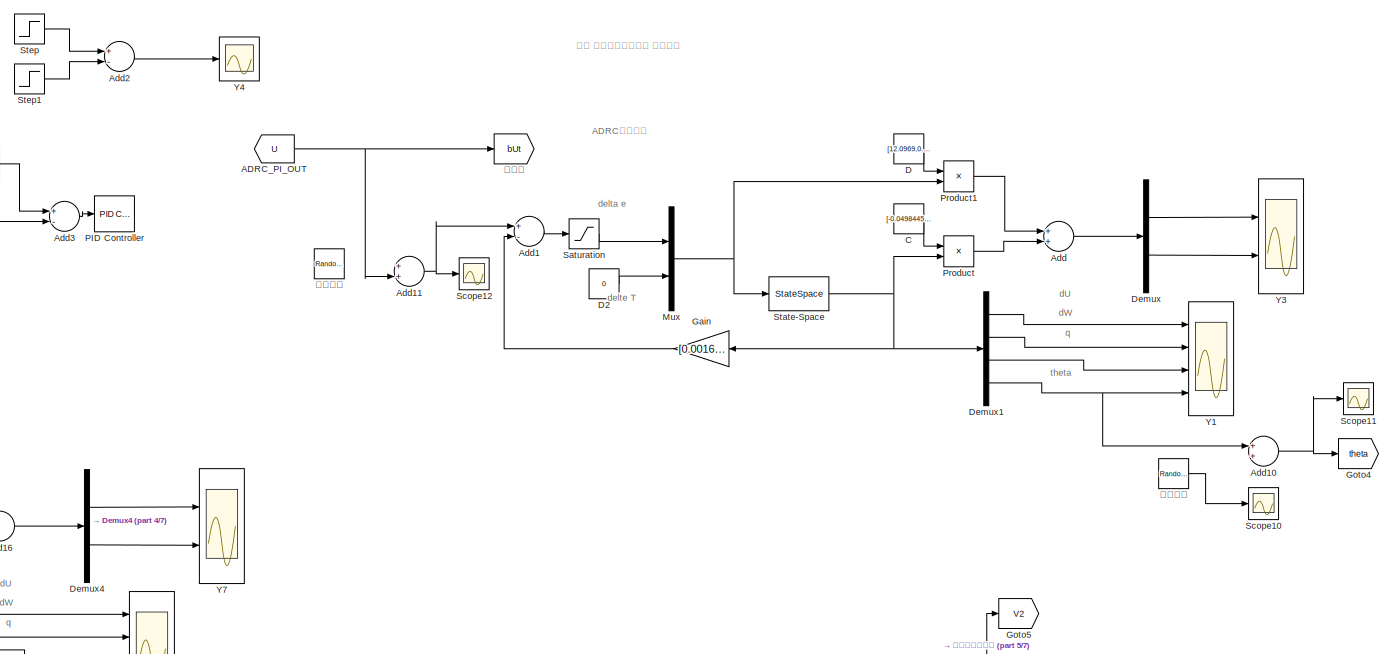
[diagram: root canvas - part 1/7, top center region]
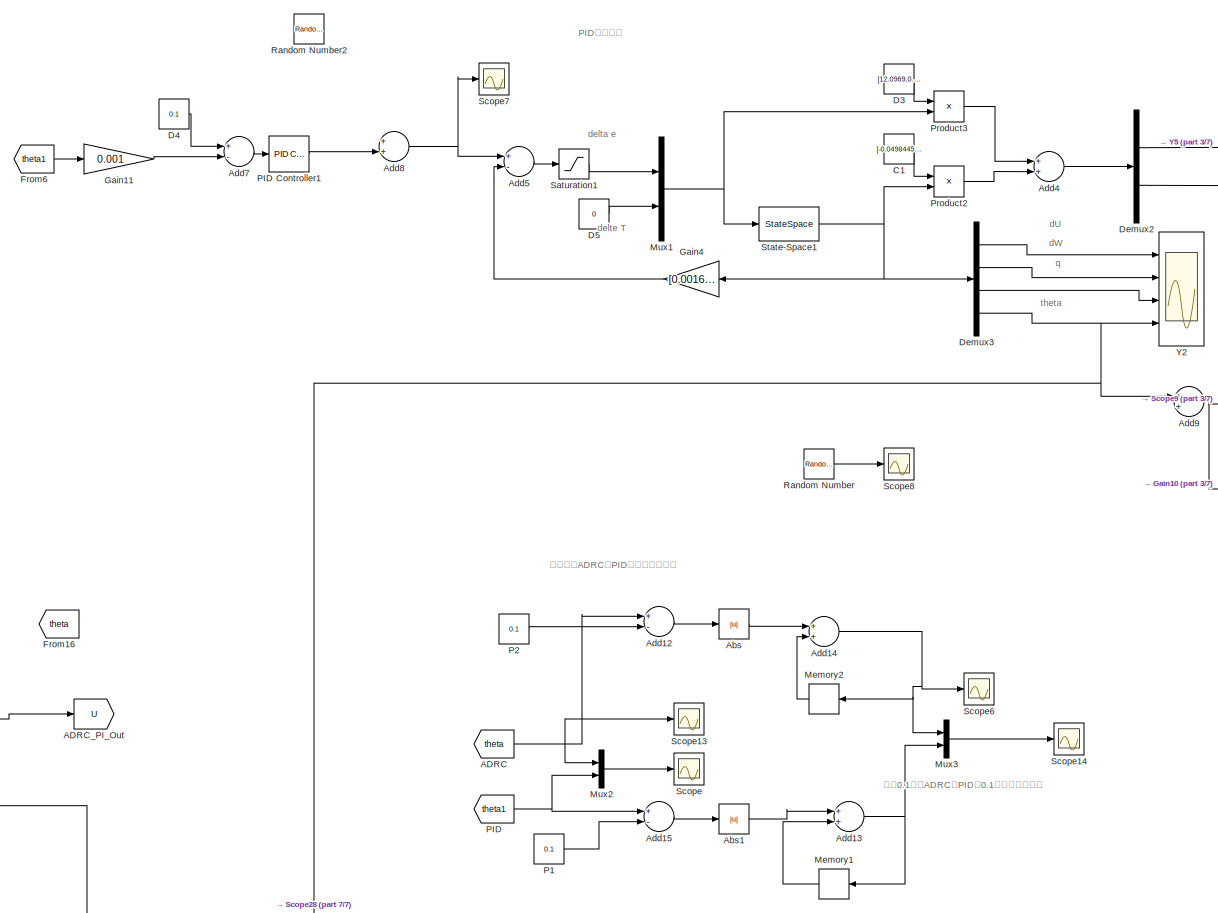
[diagram: root canvas - part 2/7, top right region]
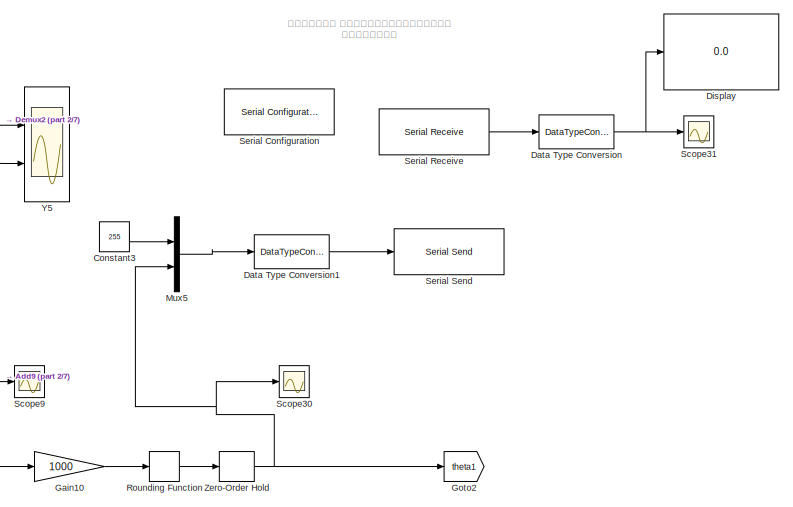
[diagram: root canvas - part 3/7, top right region]
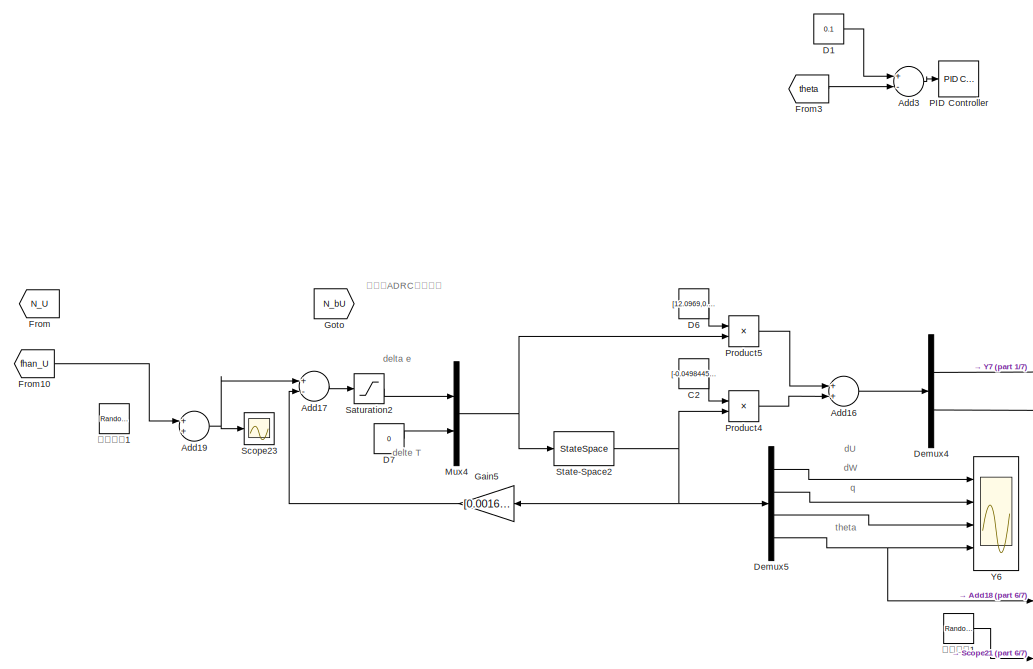
[diagram: root canvas - part 4/7, top left region]
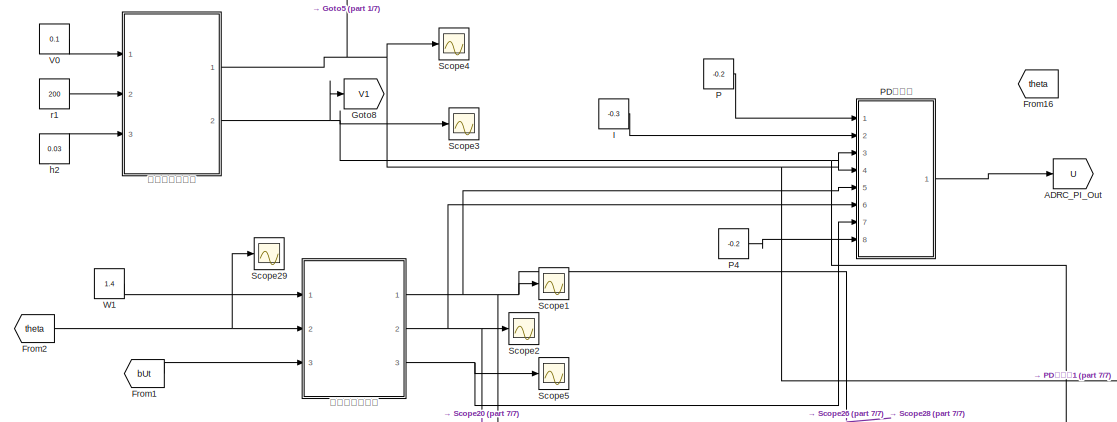
[diagram: root canvas - part 5/7, central region]
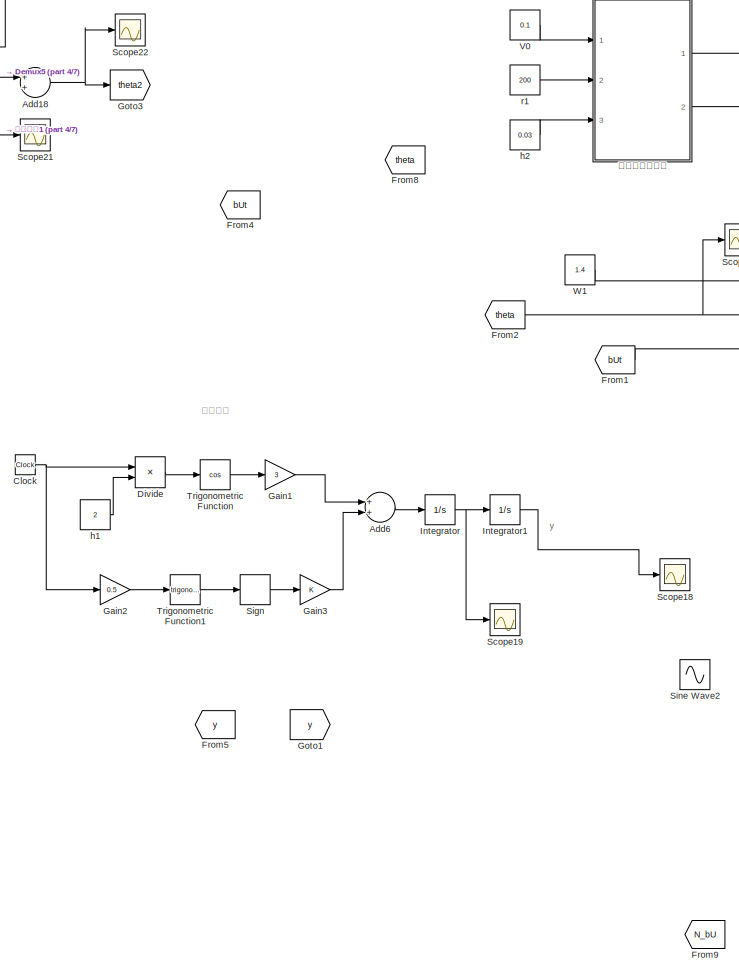
[diagram: root canvas - part 6/7, middle left region]
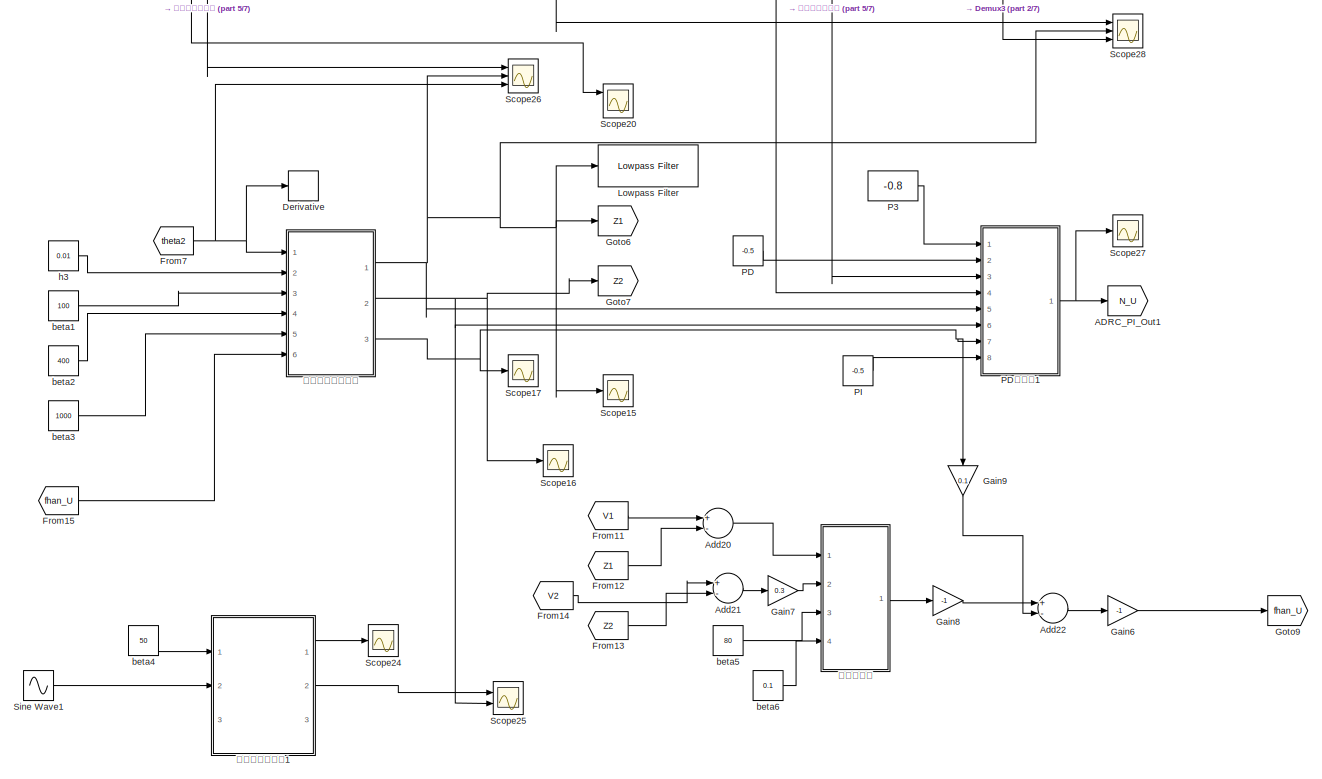
[diagram: root canvas - part 7/7, bottom center region]
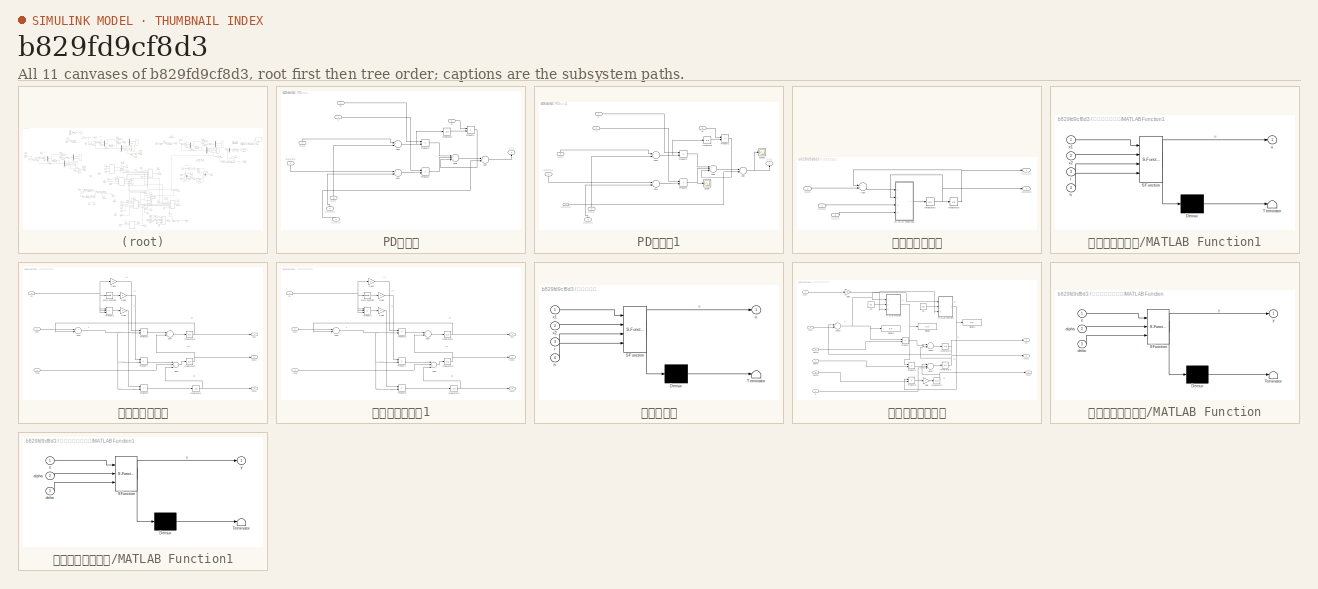
[diagram: thumbnail index - all 11 canvases of the model, root first then tree order]
MODEL slx_b829fd9cf8d3
KIND model
CONFIG AbsTol = auto
CONFIG FixedStep = 0.01
CONFIG MaxStep = auto
CONFIG MinStep = auto
CONFIG RelTol = 1e-3
CONFIG SampleTimeConstraint = Unconstrained
CONFIG Solver = ode1
CONFIG SolverMode = Auto
CONFIG SolverName = ode1
CONFIG StartTime = 0.0
CONFIG StopTime = inf
BLOCK [From] ADRC
  GotoTag = theta
BLOCK [From] ADRC_PI_OUT
  GotoTag = U
BLOCK [Goto] ADRC_PI_Out
  GotoTag = U
BLOCK [Goto] ADRC_PI_Out1
  GotoTag = N_U
BLOCK [Abs] Abs
  SaturateOnIntegerOverflow = off
BLOCK [Abs] Abs1
  SaturateOnIntegerOverflow = off
BLOCK [Sum] Add
  InputSameDT = off
  OutDataTypeStr = Inherit: Inherit via internal rule
  Ports = [2, 1]
  SaturateOnIntegerOverflow = off
BLOCK [Sum] Add1
  InputSameDT = off
  Inputs = +-
  OutDataTypeStr = Inherit: Inherit via internal rule
  Ports = [2, 1]
  SaturateOnIntegerOverflow = off
BLOCK [Sum] Add10
  InputSameDT = off
  OutDataTypeStr = Inherit: Inherit via internal rule
  Ports = [2, 1]
  SaturateOnIntegerOverflow = off
BLOCK [Sum] Add11
  InputSameDT = off
  OutDataTypeStr = Inherit: Inherit via internal rule
  Ports = [2, 1]
  SaturateOnIntegerOverflow = off
BLOCK [Sum] Add12
  InputSameDT = off
  Inputs = +-
  OutDataTypeStr = Inherit: Inherit via internal rule
  Ports = [2, 1]
  SaturateOnIntegerOverflow = off
BLOCK [Sum] Add13
  InputSameDT = off
  OutDataTypeStr = Inherit: Inherit via internal rule
  Ports = [2, 1]
  SaturateOnIntegerOverflow = off
BLOCK [Sum] Add14
  InputSameDT = off
  OutDataTypeStr = Inherit: Inherit via internal rule
  Ports = [2, 1]
  SaturateOnIntegerOverflow = off
BLOCK [Sum] Add15
  InputSameDT = off
  Inputs = +-
  OutDataTypeStr = Inherit: Inherit via internal rule
  Ports = [2, 1]
  SaturateOnIntegerOverflow = off
BLOCK [Sum] Add16
  InputSameDT = off
  OutDataTypeStr = Inherit: Inherit via internal rule
  Ports = [2, 1]
  SaturateOnIntegerOverflow = off
BLOCK [Sum] Add17
  InputSameDT = off
  Inputs = +-
  OutDataTypeStr = Inherit: Inherit via internal rule
  Ports = [2, 1]
  SaturateOnIntegerOverflow = off
BLOCK [Sum] Add18
  InputSameDT = off
  OutDataTypeStr = Inherit: Inherit via internal rule
  Ports = [2, 1]
  SaturateOnIntegerOverflow = off
BLOCK [Sum] Add19
  InputSameDT = off
  OutDataTypeStr = Inherit: Inherit via internal rule
  Ports = [2, 1]
  SaturateOnIntegerOverflow = off
BLOCK [Sum] Add2
  InputSameDT = off
  Inputs = +-
  OutDataTypeStr = Inherit: Inherit via internal rule
  Ports = [2, 1]
  SaturateOnIntegerOverflow = off
BLOCK [Sum] Add20
  InputSameDT = off
  Inputs = +-
  OutDataTypeStr = Inherit: Inherit via internal rule
  Ports = [2, 1]
  SaturateOnIntegerOverflow = off
BLOCK [Sum] Add21
  InputSameDT = off
  Inputs = +-
  OutDataTypeStr = Inherit: Inherit via internal rule
  Ports = [2, 1]
  SaturateOnIntegerOverflow = off
BLOCK [Sum] Add22
  InputSameDT = off
  Inputs = +-
  OutDataTypeStr = Inherit: Inherit via internal rule
  Ports = [2, 1]
  SaturateOnIntegerOverflow = off
BLOCK [Sum] Add3
  InputSameDT = off
  Inputs = +-
  OutDataTypeStr = Inherit: Inherit via internal rule
  Ports = [2, 1]
  SaturateOnIntegerOverflow = off
BLOCK [Sum] Add4
  InputSameDT = off
  OutDataTypeStr = Inherit: Inherit via internal rule
  Ports = [2, 1]
  SaturateOnIntegerOverflow = off
BLOCK [Sum] Add5
  InputSameDT = off
  Inputs = +-
  OutDataTypeStr = Inherit: Inherit via internal rule
  Ports = [2, 1]
  SaturateOnIntegerOverflow = off
BLOCK [Sum] Add6
  InputSameDT = off
  OutDataTypeStr = Inherit: Inherit via internal rule
  Ports = [2, 1]
  SaturateOnIntegerOverflow = off
BLOCK [Sum] Add7
  InputSameDT = off
  Inputs = +-
  OutDataTypeStr = Inherit: Inherit via internal rule
  Ports = [2, 1]
  SaturateOnIntegerOverflow = off
BLOCK [Sum] Add8
  InputSameDT = off
  OutDataTypeStr = Inherit: Inherit via internal rule
  Ports = [2, 1]
  SaturateOnIntegerOverflow = off
BLOCK [Sum] Add9
  InputSameDT = off
  OutDataTypeStr = Inherit: Inherit via internal rule
  Ports = [2, 1]
  SaturateOnIntegerOverflow = off
BLOCK [Constant] C
  Value = [-0.0498445,-1.35067,4.39526,0;-0.000189849,0.00491755,0,0]
BLOCK [Constant] C1
  Value = [-0.0498445,-1.35067,4.39526,0;-0.000189849,0.00491755,0,0]
BLOCK [Constant] C2
  Value = [-0.0498445,-1.35067,4.39526,0;-0.000189849,0.00491755,0,0]
BLOCK [Clock] Clock
BLOCK [Constant] Constant3
  Value = 255
BLOCK [Constant] D
  Value = [12.0969,0.698697;0,0]
BLOCK [Constant] D1
  Value = 0.1
BLOCK [Constant] D2
  Value = 0
BLOCK [Constant] D3
  Value = [12.0969,0.698697;0,0]
BLOCK [Constant] D4
  Value = 0.1
BLOCK [Constant] D5
  Value = 0
BLOCK [Constant] D6
  Value = [12.0969,0.698697;0,0]
BLOCK [Constant] D7
  Value = 0
BLOCK [DataTypeConversion] Data Type Conversion
  OutDataTypeStr = int16
  RndMeth = Floor
  SaturateOnIntegerOverflow = off
BLOCK [DataTypeConversion] Data Type Conversion1
  OutDataTypeStr = int16
  RndMeth = Floor
  SaturateOnIntegerOverflow = off
BLOCK [Demux] Demux
  DisplayOption = bar
  Outputs = 2
  Ports = [1, 2]
BLOCK [Demux] Demux1
  DisplayOption = bar
  Ports = [1, 4]
BLOCK [Demux] Demux2
  DisplayOption = bar
  Outputs = 2
  Ports = [1, 2]
BLOCK [Demux] Demux3
  DisplayOption = bar
  Ports = [1, 4]
BLOCK [Demux] Demux4
  DisplayOption = bar
  Outputs = 2
  Ports = [1, 2]
BLOCK [Demux] Demux5
  DisplayOption = bar
  Ports = [1, 4]
BLOCK [Derivative] Derivative
BLOCK [Display] Display
  Decimation = 1
  Ports = [1]
BLOCK [Product] Divide
  InputSameDT = off
  Inputs = */
  OutDataTypeStr = Inherit: Inherit via internal rule
  Ports = [2, 1]
  RndMeth = Floor
  SaturateOnIntegerOverflow = off
BLOCK [From] From
  GotoTag = N_U
BLOCK [From] From1
  GotoTag = bUt
BLOCK [From] From10
  GotoTag = fhan_U
BLOCK [From] From11
  GotoTag = V1
BLOCK [From] From12
  GotoTag = Z1
BLOCK [From] From13
  GotoTag = Z2
BLOCK [From] From14
  GotoTag = V2
BLOCK [From] From15
  GotoTag = fhan_U
BLOCK [From] From16
  GotoTag = theta
BLOCK [From] From2
  GotoTag = theta
BLOCK [From] From3
  GotoTag = theta
BLOCK [From] From4
  GotoTag = bUt
BLOCK [From] From5
  GotoTag = y
BLOCK [From] From6
  GotoTag = theta1
BLOCK [From] From7
  GotoTag = theta2
BLOCK [From] From8
  GotoTag = theta
BLOCK [From] From9
  GotoTag = N_bU
BLOCK [Gain] Gain
  Gain = [0.0016   -0.0048   -0.1630    0.0056]
  Multiplication = Matrix(K*u)
  OutDataTypeStr = Inherit: Inherit via internal rule
  ParamDataTypeStr = Inherit: Inherit via internal rule
  SaturateOnIntegerOverflow = off
BLOCK [Gain] Gain1
  Gain = 3
  OutDataTypeStr = Inherit: Inherit via internal rule
  ParamDataTypeStr = Inherit: Inherit via internal rule
  SaturateOnIntegerOverflow = off
BLOCK [Gain] Gain10
  Gain = 1000
  OutDataTypeStr = Inherit: Inherit via internal rule
  ParamDataTypeStr = Inherit: Inherit via internal rule
  SaturateOnIntegerOverflow = off
BLOCK [Gain] Gain11
  Gain = 0.001
  OutDataTypeStr = Inherit: Inherit via internal rule
  ParamDataTypeStr = Inherit: Inherit via internal rule
  SaturateOnIntegerOverflow = off
BLOCK [Gain] Gain2
  Gain = 0.5
  OutDataTypeStr = Inherit: Inherit via internal rule
  ParamDataTypeStr = Inherit: Inherit via internal rule
  SaturateOnIntegerOverflow = off
BLOCK [Gain] Gain3
  OutDataTypeStr = Inherit: Inherit via internal rule
  ParamDataTypeStr = Inherit: Inherit via internal rule
  SaturateOnIntegerOverflow = off
BLOCK [Gain] Gain4
  Gain = [0.0016   -0.0048   -0.1630    0.0056]
  Multiplication = Matrix(K*u)
  OutDataTypeStr = Inherit: Inherit via internal rule
  ParamDataTypeStr = Inherit: Inherit via internal rule
  SaturateOnIntegerOverflow = off
BLOCK [Gain] Gain5
  Gain = [0.0016   -0.0048   -0.1630    0.0056]
  Multiplication = Matrix(K*u)
  OutDataTypeStr = Inherit: Inherit via internal rule
  ParamDataTypeStr = Inherit: Inherit via internal rule
  SaturateOnIntegerOverflow = off
BLOCK [Gain] Gain6
  Gain = -1
  OutDataTypeStr = Inherit: Inherit via internal rule
  ParamDataTypeStr = Inherit: Inherit via internal rule
  SaturateOnIntegerOverflow = off
BLOCK [Gain] Gain7
  Gain = 0.3
  OutDataTypeStr = Inherit: Inherit via internal rule
  ParamDataTypeStr = Inherit: Inherit via internal rule
  SaturateOnIntegerOverflow = off
BLOCK [Gain] Gain8
  Gain = -1
  OutDataTypeStr = Inherit: Inherit via internal rule
  ParamDataTypeStr = Inherit: Inherit via internal rule
  SaturateOnIntegerOverflow = off
BLOCK [Gain] Gain9
  Gain = 0.1
  OutDataTypeStr = Inherit: Inherit via internal rule
  ParamDataTypeStr = Inherit: Inherit via internal rule
  SaturateOnIntegerOverflow = off
BLOCK [Goto] Goto
  GotoTag = N_bU
BLOCK [Goto] Goto1
  GotoTag = y
BLOCK [Goto] Goto2
  GotoTag = theta1
BLOCK [Goto] Goto3
  GotoTag = theta2
BLOCK [Goto] Goto4
  GotoTag = theta
BLOCK [Goto] Goto5
  GotoTag = V2
BLOCK [Goto] Goto6
  GotoTag = Z1
BLOCK [Goto] Goto7
  GotoTag = Z2
BLOCK [Goto] Goto8
  GotoTag = V1
BLOCK [Goto] Goto9
  GotoTag = fhan_U
BLOCK [Constant] I
  Value = -0.3
BLOCK [Integrator] Integrator
  Ports = [1, 1]
BLOCK [Integrator] Integrator1
  Ports = [1, 1]
BLOCK [Reference] Lowpass Filter  REF=dspfdesign/Lowpass Filter
  Ports = [1, 1]
  SourceBlock = dspfdesign/Lowpass Filter
  SourceType = dsp.LowpassFilter
BLOCK [Memory] Memory1
BLOCK [Memory] Memory2
BLOCK [Mux] Mux
  DisplayOption = bar
  Inputs = 2
  Ports = [2, 1]
BLOCK [Mux] Mux1
  DisplayOption = bar
  Inputs = 2
  Ports = [2, 1]
BLOCK [Mux] Mux2
  DisplayOption = bar
  Inputs = 2
  Ports = [2, 1]
BLOCK [Mux] Mux3
  DisplayOption = bar
  Inputs = 2
  Ports = [2, 1]
BLOCK [Mux] Mux4
  DisplayOption = bar
  Inputs = 2
  Ports = [2, 1]
BLOCK [Mux] Mux5
  DisplayOption = bar
  Inputs = 2
  Ports = [2, 1]
BLOCK [Constant] P
  Value = -0.2
BLOCK [Constant] P1
  Value = 0.1
BLOCK [Constant] P2
  Value = 0.1
BLOCK [Constant] P3
  Value = -0.8
BLOCK [Constant] P4
  Value = -0.2
BLOCK [Constant] PD
  Value = -0.5
BLOCK [SubSystem] PD控制器
  Ports = [8, 1]
  RequestExecContextInheritance = off
  Variant = off
BLOCK [Sum] PD控制器/Add3
  InputSameDT = off
  Inputs = +-
  OutDataTypeStr = Inherit: Inherit via internal rule
  Ports = [2, 1]
  SaturateOnIntegerOverflow = off
BLOCK [Sum] PD控制器/Add4
  InputSameDT = off
  Inputs = +-
  OutDataTypeStr = Inherit: Inherit via internal rule
  Ports = [2, 1]
  SaturateOnIntegerOverflow = off
BLOCK [Sum] PD控制器/Add5
  InputSameDT = off
  Inputs = +++
  OutDataTypeStr = Inherit: Inherit via internal rule
  Ports = [3, 1]
  SaturateOnIntegerOverflow = off
BLOCK [Sum] PD控制器/Add7
  InputSameDT = off
  Inputs = +-
  OutDataTypeStr = Inherit: Inherit via internal rule
  Ports = [2, 1]
  SaturateOnIntegerOverflow = off
BLOCK [Inport] PD控制器/D
  IconDisplay = Port number
  Port = 8
BLOCK [Inport] PD控制器/I
  IconDisplay = Port number
  Port = 2
BLOCK [Integrator] PD控制器/Integrator
  Ports = [1, 1]
BLOCK [Inport] PD控制器/P
  IconDisplay = Port number
BLOCK [Product] PD控制器/Product1
  InputSameDT = off
  OutDataTypeStr = Inherit: Inherit via internal rule
  Ports = [2, 1]
  RndMeth = Floor
  SaturateOnIntegerOverflow = off
BLOCK [Product] PD控制器/Product2
  InputSameDT = off
  OutDataTypeStr = Inherit: Inherit via internal rule
  Ports = [2, 1]
  RndMeth = Floor
  SaturateOnIntegerOverflow = off
BLOCK [Product] PD控制器/Product3
  InputSameDT = off
  OutDataTypeStr = Inherit: Inherit via internal rule
  Ports = [2, 1]
  RndMeth = Floor
  SaturateOnIntegerOverflow = off
BLOCK [Inport] PD控制器/实际值
  IconDisplay = Port number
  Port = 5
BLOCK [Inport] PD控制器/实际微分值
  IconDisplay = Port number
  Port = 6
BLOCK [Inport] PD控制器/总扰动估计
  IconDisplay = Port number
  Port = 7
BLOCK [Outport] PD控制器/控制量
  IconDisplay = Port number
BLOCK [Inport] PD控制器/目标值
  IconDisplay = Port number
  Port = 4
BLOCK [Inport] PD控制器/目标值微分
  IconDisplay = Port number
  Port = 3
BLOCK [SubSystem] PD控制器1
  Ports = [8, 1]
  RequestExecContextInheritance = off
  Variant = off
BLOCK [Sum] PD控制器1/Add3
  InputSameDT = off
  Inputs = +-
  OutDataTypeStr = Inherit: Inherit via internal rule
  Ports = [2, 1]
  SaturateOnIntegerOverflow = off
BLOCK [Sum] PD控制器1/Add4
  InputSameDT = off
  Inputs = +-
  OutDataTypeStr = Inherit: Inherit via internal rule
  Ports = [2, 1]
  SaturateOnIntegerOverflow = off
BLOCK [Sum] PD控制器1/Add5
  InputSameDT = off
  Inputs = +++
  OutDataTypeStr = Inherit: Inherit via internal rule
  Ports = [3, 1]
  SaturateOnIntegerOverflow = off
BLOCK [Sum] PD控制器1/Add7
  InputSameDT = off
  Inputs = +-
  OutDataTypeStr = Inherit: Inherit via internal rule
  Ports = [2, 1]
  SaturateOnIntegerOverflow = off
BLOCK [Inport] PD控制器1/I
  IconDisplay = Port number
  Port = 2
BLOCK [Integrator] PD控制器1/Integrator
  Ports = [1, 1]
BLOCK [Inport] PD控制器1/P
  IconDisplay = Port number
BLOCK [Inport] PD控制器1/Pi
  IconDisplay = Port number
  Port = 8
BLOCK [Product] PD控制器1/Product1
  InputSameDT = off
  OutDataTypeStr = Inherit: Inherit via internal rule
  Ports = [2, 1]
  RndMeth = Floor
  SaturateOnIntegerOverflow = off
BLOCK [Product] PD控制器1/Product2
  InputSameDT = off
  OutDataTypeStr = Inherit: Inherit via internal rule
  Ports = [2, 1]
  RndMeth = Floor
  SaturateOnIntegerOverflow = off
BLOCK [Product] PD控制器1/Product3
  InputSameDT = off
  OutDataTypeStr = Inherit: Inherit via internal rule
  Ports = [2, 1]
  RndMeth = Floor
  SaturateOnIntegerOverflow = off
BLOCK [Scope] PD控制器1/Scope
  Ports = [1]
  ScopeSpecificationString = Simulink.scopes.TimeScopeBlockCfg('CurrentConfiguration', extmgr.ConfigurationSet(extmgr.Configuration('Core','General UI',true),extmgr.Configuration('Core','Source UI',true),extmgr.Configuration('Sources','WiredSimulink',true,'DataLoggingVariableName','ScopeData5'),extmgr.Configuration('Visuals','Time Domain',true,'SerializedDisplays',{struct('MinYLimReal','-3.64016','MaxYLimReal','0.80974','YLab...<+1392ch>
BLOCK [Scope] PD控制器1/Scope1
  Ports = [1]
  ScopeSpecificationString = C++SS(StrPVP('SaveName','ScopeData5'),StrPVP('SaveName','ScopeData6'),StrPVP('LimitDataPoints','on'),StrPVP('DataFormat','Array'),StrPVP('Decimation','1'),StrPVP('BlockParamSampleInput','off'))
BLOCK [Inport] PD控制器1/实际值
  IconDisplay = Port number
  Port = 5
BLOCK [Inport] PD控制器1/实际微分值
  IconDisplay = Port number
  Port = 6
BLOCK [Inport] PD控制器1/总扰动估计
  IconDisplay = Port number
  Port = 7
BLOCK [Outport] PD控制器1/控制量
  IconDisplay = Port number
BLOCK [Inport] PD控制器1/目标值
  IconDisplay = Port number
  Port = 4
BLOCK [Inport] PD控制器1/目标值微分
  IconDisplay = Port number
  Port = 3
BLOCK [Constant] PI
  Value = -0.5
BLOCK [From] PID
  GotoTag = theta1
BLOCK [Reference] PID Controller  REF=simulink/Continuous/PID Controller
  Ports = [1, 1]
  SourceBlock = simulink/Continuous/PID Controller
  SourceType = PID 1dof
BLOCK [Reference] PID Controller1  REF=simulink/Continuous/PID Controller
  Ports = [1, 1]
  SourceBlock = simulink/Continuous/PID Controller
  SourceType = PID 1dof
BLOCK [Product] Product
  InputSameDT = off
  Multiplication = Matrix(*)
  OutDataTypeStr = Inherit: Inherit via internal rule
  Ports = [2, 1]
  RndMeth = Floor
  SaturateOnIntegerOverflow = off
BLOCK [Product] Product1
  InputSameDT = off
  Multiplication = Matrix(*)
  OutDataTypeStr = Inherit: Inherit via internal rule
  Ports = [2, 1]
  RndMeth = Floor
  SaturateOnIntegerOverflow = off
BLOCK [Product] Product2
  InputSameDT = off
  Multiplication = Matrix(*)
  OutDataTypeStr = Inherit: Inherit via internal rule
  Ports = [2, 1]
  RndMeth = Floor
  SaturateOnIntegerOverflow = off
BLOCK [Product] Product3
  InputSameDT = off
  Multiplication = Matrix(*)
  OutDataTypeStr = Inherit: Inherit via internal rule
  Ports = [2, 1]
  RndMeth = Floor
  SaturateOnIntegerOverflow = off
BLOCK [Product] Product4
  InputSameDT = off
  Multiplication = Matrix(*)
  OutDataTypeStr = Inherit: Inherit via internal rule
  Ports = [2, 1]
  RndMeth = Floor
  SaturateOnIntegerOverflow = off
BLOCK [Product] Product5
  InputSameDT = off
  Multiplication = Matrix(*)
  OutDataTypeStr = Inherit: Inherit via internal rule
  Ports = [2, 1]
  RndMeth = Floor
  SaturateOnIntegerOverflow = off
BLOCK [RandomNumber] Random Number
  SampleTime = 0.01
  Variance = 0.000001
BLOCK [RandomNumber] Random Number2
  SampleTime = 0.01
  Variance = 0.00005
BLOCK [Rounding] Rounding Function
  Operator = round
BLOCK [Saturate] Saturation
  InputPortMap = u0
  LowerLimit = -30/180*pi
  Ports = [1, 1]
  UpperLimit = 30/180*pi
BLOCK [Saturate] Saturation1
  InputPortMap = u0
  LowerLimit = -30/180*pi
  Ports = [1, 1]
  UpperLimit = 30/180*pi
BLOCK [Saturate] Saturation2
  InputPortMap = u0
  LowerLimit = -30/180*pi
  Ports = [1, 1]
  UpperLimit = 30/180*pi
BLOCK [Scope] Scope
  Ports = [1]
  ScopeSpecificationString = Simulink.scopes.TimeScopeBlockCfg('CurrentConfiguration', extmgr.ConfigurationSet(extmgr.Configuration('Core','General UI',true),extmgr.Configuration('Core','Source UI',true),extmgr.Configuration('Sources','WiredSimulink',true,'DataLoggingVariableName','ScopeData9'),extmgr.Configuration('Visuals','Time Domain',true,'SerializedDisplays',{struct('MinYLimReal','0.05655','MaxYLimReal','0.13248','YLabe...<+1444ch>
BLOCK [Scope] Scope1
  Ports = [1]
  ScopeSpecificationString = Simulink.scopes.TimeScopeBlockCfg('CurrentConfiguration', extmgr.ConfigurationSet(extmgr.Configuration('Core','General UI',true),extmgr.Configuration('Core','Source UI',true),extmgr.Configuration('Sources','WiredSimulink',true,'DataLoggingVariableName','ScopeData3'),extmgr.Configuration('Visuals','Time Domain',true,'SerializedDisplays',{struct('MinYLimReal','-0.01679','MaxYLimReal','0.14764','YLab...<+1420ch>
BLOCK [Scope] Scope10
  Ports = [1]
  ScopeSpecificationString = Simulink.scopes.TimeScopeBlockCfg('CurrentConfiguration', extmgr.ConfigurationSet(extmgr.Configuration('Core','General UI',true),extmgr.Configuration('Core','Source UI',true),extmgr.Configuration('Sources','WiredSimulink',true,'DataLoggingVariableName','ScopeData14'),extmgr.Configuration('Visuals','Time Domain',true,'SerializedDisplays',{struct('MinYLimReal','-0.00515','MaxYLimReal','0.00509','YLa...<+1391ch>
BLOCK [Scope] Scope11
  Ports = [1]
  ScopeSpecificationString = Simulink.scopes.TimeScopeBlockCfg('CurrentConfiguration', extmgr.ConfigurationSet(extmgr.Configuration('Core','General UI',true),extmgr.Configuration('Core','Source UI',true),extmgr.Configuration('Sources','WiredSimulink',true,'DataLoggingVariableName','ScopeData15'),extmgr.Configuration('Visuals','Time Domain',true,'SerializedDisplays',{struct('MinYLimReal','-0.01442','MaxYLimReal','0.12982','YLa...<+1443ch>
BLOCK [Scope] Scope12
  Ports = [1]
  ScopeSpecificationString = Simulink.scopes.TimeScopeBlockCfg('CurrentConfiguration', extmgr.ConfigurationSet(extmgr.Configuration('Core','General UI',true),extmgr.Configuration('Core','Source UI',true),extmgr.Configuration('Sources','WiredSimulink',true,'DataLoggingVariableName','ScopeData16'),extmgr.Configuration('Visuals','Time Domain',true,'SerializedDisplays',{struct('MinYLimReal','0.08849','MaxYLimReal','0.11137','YLab...<+1414ch>
BLOCK [Scope] Scope13
  Ports = [1]
  ScopeSpecificationString = Simulink.scopes.TimeScopeBlockCfg('CurrentConfiguration', extmgr.ConfigurationSet(extmgr.Configuration('Core','General UI',true),extmgr.Configuration('Core','Source UI',true),extmgr.Configuration('Sources','WiredSimulink',true,'DataLoggingVariableName','ScopeData1'),extmgr.Configuration('Visuals','Time Domain',true,'SerializedDisplays',{struct('MinYLimReal','-0.01799','MaxYLimReal','0.15333','YLab...<+1435ch>
BLOCK [Scope] Scope14
  Ports = [1]
  ScopeSpecificationString = Simulink.scopes.TimeScopeBlockCfg('CurrentConfiguration', extmgr.ConfigurationSet(extmgr.Configuration('Core','General UI',true),extmgr.Configuration('Core','Source UI',true),extmgr.Configuration('Sources','WiredSimulink',true,'DataLoggingVariableName','ScopeData3'),extmgr.Configuration('Visuals','Time Domain',true,'SerializedDisplays',{struct('MinYLimReal','-1.96774','MaxYLimReal','18.70967','YLa...<+1451ch>
BLOCK [Scope] Scope15
  Ports = [1]
  ScopeSpecificationString = Simulink.scopes.TimeScopeBlockCfg('CurrentConfiguration', extmgr.ConfigurationSet(extmgr.Configuration('Core','General UI',true),extmgr.Configuration('Core','Source UI',true),extmgr.Configuration('Sources','WiredSimulink',true,'DataLoggingVariableName','ScopeData1'),extmgr.Configuration('Visuals','Time Domain',true,'SerializedDisplays',{struct('MinYLimReal','-0.01597','MaxYLimReal','0.13707','YLab...<+1440ch>
BLOCK [Scope] Scope16
  Ports = [1]
  ScopeSpecificationString = Simulink.scopes.TimeScopeBlockCfg('CurrentConfiguration', extmgr.ConfigurationSet(extmgr.Configuration('Core','General UI',true),extmgr.Configuration('Core','Source UI',true),extmgr.Configuration('Sources','WiredSimulink',true,'DataLoggingVariableName','ScopeData2'),extmgr.Configuration('Visuals','Time Domain',true,'SerializedDisplays',{struct('MinYLimReal','-0.87993','MaxYLimReal','0.84917','YLab...<+1413ch>
BLOCK [Scope] Scope17
  Ports = [1]
  ScopeSpecificationString = Simulink.scopes.TimeScopeBlockCfg('CurrentConfiguration', extmgr.ConfigurationSet(extmgr.Configuration('Core','General UI',true),extmgr.Configuration('Core','Source UI',true),extmgr.Configuration('Sources','WiredSimulink',true,'DataLoggingVariableName','ScopeData3'),extmgr.Configuration('Visuals','Time Domain',true,'SerializedDisplays',{struct('MinYLimReal','-2.77665','MaxYLimReal','3.08578','YLab...<+1413ch>
BLOCK [Scope] Scope18
  Ports = [1]
  ScopeSpecificationString = Simulink.scopes.TimeScopeBlockCfg('CurrentConfiguration', extmgr.ConfigurationSet(extmgr.Configuration('Core','General UI',true),extmgr.Configuration('Core','Source UI',true),extmgr.Configuration('Sources','WiredSimulink',true,'DataLoggingVariableName','ScopeData4'),extmgr.Configuration('Visuals','Time Domain',true,'SerializedDisplays',{struct('MinYLimReal','-11.01175','MaxYLimReal','99.10572','YL...<+1428ch>
BLOCK [Scope] Scope19
  Ports = [1]
  ScopeSpecificationString = Simulink.scopes.TimeScopeBlockCfg('CurrentConfiguration', extmgr.ConfigurationSet(extmgr.Configuration('Core','General UI',true),extmgr.Configuration('Core','Source UI',true),extmgr.Configuration('Sources','WiredSimulink',true,'DataLoggingVariableName','ScopeData5'),extmgr.Configuration('Visuals','Time Domain',true,'SerializedDisplays',{struct('MinYLimReal','-4.76579','MaxYLimReal','11.07897','YLa...<+1398ch>
BLOCK [Scope] Scope2
  Ports = [1]
  ScopeSpecificationString = Simulink.scopes.TimeScopeBlockCfg('CurrentConfiguration', extmgr.ConfigurationSet(extmgr.Configuration('Core','General UI',true),extmgr.Configuration('Core','Source UI',true),extmgr.Configuration('Sources','WiredSimulink',true,'DataLoggingVariableName','ScopeData4'),extmgr.Configuration('Visuals','Time Domain',true,'SerializedDisplays',{struct('MinYLimReal','-0.04139','MaxYLimReal','0.06279','YLab...<+1393ch>
BLOCK [Scope] Scope20
  NumInputPorts = 3
  Ports = [3]
  ScopeSpecificationString = Simulink.scopes.TimeScopeBlockCfg('CurrentConfiguration', extmgr.ConfigurationSet(extmgr.Configuration('Core','General UI',true),extmgr.Configuration('Core','Source UI',true),extmgr.Configuration('Sources','WiredSimulink',true,'DataLoggingVariableName','ScopeData1'),extmgr.Configuration('Visuals','Time Domain',true,'SerializedDisplays',{struct('MinYLimReal','-0.04132','MaxYLimReal','0.06295','YLab...<+1463ch>
BLOCK [Scope] Scope21
  Ports = [1]
  ScopeSpecificationString = C++SS(StrPVP('SaveName','ScopeData2'),StrPVP('LimitDataPoints','on'),StrPVP('DataFormat','Array'),StrPVP('Decimation','1'),StrPVP('BlockParamSampleInput','off'))
BLOCK [Scope] Scope22
  Ports = [1]
  ScopeSpecificationString = Simulink.scopes.TimeScopeBlockCfg('CurrentConfiguration', extmgr.ConfigurationSet(extmgr.Configuration('Core','General UI',true),extmgr.Configuration('Core','Source UI',true),extmgr.Configuration('Sources','WiredSimulink',true,'DataLoggingVariableName','ScopeData3'),extmgr.Configuration('Visuals','Time Domain',true,'SerializedDisplays',{struct('MinYLimReal','-0.01451','MaxYLimReal','0.13059','YLab...<+1420ch>
BLOCK [Scope] Scope23
  Ports = [1]
  ScopeSpecificationString = C++SS(StrPVP('SaveName','ScopeData4'),StrPVP('LimitDataPoints','on'),StrPVP('DataFormat','Array'),StrPVP('Decimation','1'),StrPVP('BlockParamSampleInput','off'))
BLOCK [Scope] Scope24
  Ports = [1]
  ScopeSpecificationString = Simulink.scopes.TimeScopeBlockCfg('CurrentConfiguration', extmgr.ConfigurationSet(extmgr.Configuration('Core','General UI',true),extmgr.Configuration('Core','Source UI',true),extmgr.Configuration('Sources','WiredSimulink',true,'DataLoggingVariableName','ScopeData1'),extmgr.Configuration('Visuals','Time Domain',true,'SerializedDisplays',{struct('MinYLimReal','-1.25','MaxYLimReal','1.25','YLabelReal...<+1351ch>
BLOCK [Scope] Scope25
  NumInputPorts = 2
  Ports = [2]
  ScopeSpecificationString = Simulink.scopes.TimeScopeBlockCfg('CurrentConfiguration', extmgr.ConfigurationSet(extmgr.Configuration('Core','General UI',true),extmgr.Configuration('Core','Source UI',true),extmgr.Configuration('Sources','WiredSimulink',true,'DataLoggingVariableName','ScopeData2'),extmgr.Configuration('Visuals','Time Domain',true,'SerializedDisplays',{struct('MinYLimReal','-1.30599','MaxYLimReal','1.742','YLabel...<+1426ch>
BLOCK [Scope] Scope26
  NumInputPorts = 3
  Ports = [3]
  ScopeSpecificationString = Simulink.scopes.TimeScopeBlockCfg('CurrentConfiguration', extmgr.ConfigurationSet(extmgr.Configuration('Core','General UI',true),extmgr.Configuration('Core','Source UI',true),extmgr.Configuration('Sources','WiredSimulink',true,'DataLoggingVariableName','ScopeData3'),extmgr.Configuration('Visuals','Time Domain',true,'SerializedDisplays',{struct('MinYLimReal','-0.01597','MaxYLimReal','0.13455','YLab...<+1460ch>
BLOCK [Scope] Scope27
  Ports = [1]
  ScopeSpecificationString = Simulink.scopes.TimeScopeBlockCfg('CurrentConfiguration', extmgr.ConfigurationSet(extmgr.Configuration('Core','General UI',true),extmgr.Configuration('Core','Source UI',true),extmgr.Configuration('Sources','WiredSimulink',true,'DataLoggingVariableName','ScopeData4'),extmgr.Configuration('Visuals','Time Domain',true,'SerializedDisplays',{struct('MinYLimReal','-4.50057','MaxYLimReal','1.54642','YLab...<+1409ch>
BLOCK [Scope] Scope28
  NumInputPorts = 3
  Ports = [3]
  ScopeSpecificationString = Simulink.scopes.TimeScopeBlockCfg('CurrentConfiguration', extmgr.ConfigurationSet(extmgr.Configuration('Core','General UI',true),extmgr.Configuration('Core','Source UI',true),extmgr.Configuration('Sources','WiredSimulink',true,'DataLoggingVariableName','ScopeData7'),extmgr.Configuration('Visuals','Time Domain',true,'SerializedDisplays',{struct('MinYLimReal','-0.01597','MaxYLimReal','0.13707','YLab...<+1467ch>
BLOCK [Scope] Scope29
  Ports = [1]
  ScopeSpecificationString = Simulink.scopes.TimeScopeBlockCfg('CurrentConfiguration', extmgr.ConfigurationSet(extmgr.Configuration('Core','General UI',true),extmgr.Configuration('Core','Source UI',true),extmgr.Configuration('Sources','WiredSimulink',true,'DataLoggingVariableName','ScopeData8'),extmgr.Configuration('Visuals','Time Domain',true,'SerializedDisplays',{struct('MinYLimReal','-0.01611','MaxYLimReal','0.14574','YLab...<+1416ch>
BLOCK [Scope] Scope3
  Ports = [1]
  ScopeSpecificationString = Simulink.scopes.TimeScopeBlockCfg('CurrentConfiguration', extmgr.ConfigurationSet(extmgr.Configuration('Core','General UI',true),extmgr.Configuration('Core','Source UI',true),extmgr.Configuration('Sources','WiredSimulink',true,'DataLoggingVariableName','ScopeData1'),extmgr.Configuration('Visuals','Time Domain',true,'SerializedDisplays',{struct('MinYLimReal','-0.0125','MaxYLimReal','0.1125','YLabel...<+1387ch>
BLOCK [Scope] Scope30
  Ports = [1]
  ScopeSpecificationString = Simulink.scopes.TimeScopeBlockCfg('CurrentConfiguration', extmgr.ConfigurationSet(extmgr.Configuration('Core','General UI',true),extmgr.Configuration('Core','Source UI',true),extmgr.Configuration('Sources','WiredSimulink',true,'DataLoggingVariableName','ScopeData1'),extmgr.Configuration('Visuals','Time Domain',true,'SerializedDisplays',{struct('MinYLimReal','-13.125','MaxYLimReal','118.125','YLabe...<+1434ch>
BLOCK [Scope] Scope31
  Ports = [1]
  ScopeSpecificationString = Simulink.scopes.TimeScopeBlockCfg('CurrentConfiguration', extmgr.ConfigurationSet(extmgr.Configuration('Core','General UI',true),extmgr.Configuration('Core','Source UI',true),extmgr.Configuration('Sources','WiredSimulink',true,'DataLoggingVariableName','ScopeData2','DataLoggingLimitDataPoints',true,'DataLoggingSaveFormat','Array','DataLoggingDecimation','1','DataLoggingDecimateData',true),extmgr.C...<+1556ch>
BLOCK [Scope] Scope4
  Ports = [1]
  ScopeSpecificationString = Simulink.scopes.TimeScopeBlockCfg('CurrentConfiguration', extmgr.ConfigurationSet(extmgr.Configuration('Core','General UI',true),extmgr.Configuration('Core','Source UI',true),extmgr.Configuration('Sources','WiredSimulink',true,'DataLoggingVariableName','ScopeData2'),extmgr.Configuration('Visuals','Time Domain',true,'SerializedDisplays',{struct('MinYLimReal','-0.18519','MaxYLimReal','1.66667','YLab...<+1393ch>
BLOCK [Scope] Scope5
  Ports = [1]
  ScopeSpecificationString = Simulink.scopes.TimeScopeBlockCfg('CurrentConfiguration', extmgr.ConfigurationSet(extmgr.Configuration('Core','General UI',true),extmgr.Configuration('Core','Source UI',true),extmgr.Configuration('Sources','WiredSimulink',true,'DataLoggingVariableName','ScopeData5'),extmgr.Configuration('Visuals','Time Domain',true,'SerializedDisplays',{struct('MinYLimReal','-0.00645','MaxYLimReal','0.05803','YLab...<+1393ch>
BLOCK [Scope] Scope6
  Ports = [1]
  ScopeSpecificationString = Simulink.scopes.TimeScopeBlockCfg('CurrentConfiguration', extmgr.ConfigurationSet(extmgr.Configuration('Core','General UI',true),extmgr.Configuration('Core','Source UI',true),extmgr.Configuration('Sources','WiredSimulink',true,'DataLoggingVariableName','ScopeData2'),extmgr.Configuration('Visuals','Time Domain',true,'SerializedDisplays',{struct('MinYLimReal','-0.58082','MaxYLimReal','5.86656','YLab...<+1383ch>
BLOCK [Scope] Scope7
  Ports = [1]
  ScopeSpecificationString = Simulink.scopes.TimeScopeBlockCfg('CurrentConfiguration', extmgr.ConfigurationSet(extmgr.Configuration('Core','General UI',true),extmgr.Configuration('Core','Source UI',true),extmgr.Configuration('Sources','WiredSimulink',true,'DataLoggingVariableName','ScopeData11'),extmgr.Configuration('Visuals','Time Domain',true,'SerializedDisplays',{struct('MinYLimReal','-0.14821','MaxYLimReal','0.02911','YLa...<+1416ch>
BLOCK [Scope] Scope8
  Ports = [1]
  ScopeSpecificationString = Simulink.scopes.TimeScopeBlockCfg('CurrentConfiguration', extmgr.ConfigurationSet(extmgr.Configuration('Core','General UI',true),extmgr.Configuration('Core','Source UI',true),extmgr.Configuration('Sources','WiredSimulink',true,'DataLoggingVariableName','ScopeData12'),extmgr.Configuration('Visuals','Time Domain',true,'SerializedDisplays',{struct('MinYLimReal','-0.00515','MaxYLimReal','0.00509','YLa...<+1400ch>
BLOCK [Scope] Scope9
  Ports = [1]
  ScopeSpecificationString = Simulink.scopes.TimeScopeBlockCfg('CurrentConfiguration', extmgr.ConfigurationSet(extmgr.Configuration('Core','General UI',true),extmgr.Configuration('Core','Source UI',true),extmgr.Configuration('Sources','WiredSimulink',true,'DataLoggingVariableName','ScopeData13'),extmgr.Configuration('Visuals','Time Domain',true,'SerializedDisplays',{struct('MinYLimReal','-0.01308','MaxYLimReal','0.11773','YLa...<+1426ch>
BLOCK [Reference] Serial Configuration  REF=instrumentlib/Serial Configuration
  Ports = []
  Priority = -200000
  SourceBlock = instrumentlib/Serial Configuration
  SourceType = Serial Configuration
BLOCK [Reference] Serial Receive  REF=instrumentlib/Serial Receive
  Ports = [0, 1]
  SourceBlock = instrumentlib/Serial Receive
  SourceType = Serial Receive
BLOCK [Reference] Serial Send  REF=instrumentlib/Serial Send
  Ports = [1]
  SourceBlock = instrumentlib/Serial Send
  SourceType = Serial Send
BLOCK [Signum] Sign
BLOCK [Sin] Sine Wave1
  Ports = [0, 1]
  SampleTime = 0
BLOCK [Sin] Sine Wave2
  Ports = [0, 1]
  SampleTime = 0
BLOCK [StateSpace] State-Space
  A = [-0.0153803,0.0439192,-7.83906,-9.80253;-0.0438131,-1.32042,203.051,-0.378441;0.00123923,0.00621593,-0.903074,0;0,0,1,0]
  B = [2.07005,9.57054;-88.0560,0;-20.5780,-0.143558;0,0]
  C = [1,0,0,0;0,1,0,0;0,0,1,0;0,0,0,1]
  D = [0,0;0,0;0,0;0,0]
  Ports = [1, 1]
  X0 = [0,0,0,0]
BLOCK [StateSpace] State-Space1
  A = [-0.0153803,0.0439192,-7.83906,-9.80253;-0.0438131,-1.32042,203.051,-0.378441;0.00123923,0.00621593,-0.903074,0;0,0,1,0]
  B = [2.07005,9.57054;-88.0560,0;-20.5780,-0.143558;0,0]
  C = [1,0,0,0;0,1,0,0;0,0,1,0;0,0,0,1]
  D = [0,0;0,0;0,0;0,0]
  Ports = [1, 1]
  X0 = [0,0,0,0]
BLOCK [StateSpace] State-Space2
  A = [-0.0153803,0.0439192,-7.83906,-9.80253;-0.0438131,-1.32042,203.051,-0.378441;0.00123923,0.00621593,-0.903074,0;0,0,1,0]
  B = [2.07005,9.57054;-88.0560,0;-20.5780,-0.143558;0,0]
  C = [1,0,0,0;0,1,0,0;0,0,1,0;0,0,0,1]
  D = [0,0;0,0;0,0;0,0]
  Ports = [1, 1]
  X0 = [0,0,0,0]
BLOCK [Step] Step
  After = 1/180*pi
  SampleTime = 0
BLOCK [Step] Step1
  After = 1/180*pi
  SampleTime = 0
  Time = 1.1
BLOCK [Trigonometry] Trigonometric Function
  Operator = cos
  Ports = [1, 1]
BLOCK [Trigonometry] Trigonometric Function1
  Ports = [1, 1]
BLOCK [Constant] V0
  Value = 0.1
BLOCK [Constant] W1
  Value = 1.4
BLOCK [Scope] Y1
  NumInputPorts = 4
  Ports = [4]
  ScopeSpecificationString = Simulink.scopes.TimeScopeBlockCfg('CurrentConfiguration', extmgr.ConfigurationSet(extmgr.Configuration('Core','General UI',true),extmgr.Configuration('Core','Source UI',true),extmgr.Configuration('Sources','WiredSimulink',true,'DataLoggingVariableName','ScopeData1'),extmgr.Configuration('Visuals','Time Domain',true,'SerializedDisplays',{struct('MinYLimReal','-65.42591','MaxYLimReal','7.26973','YLa...<+3482ch>
BLOCK [Scope] Y2
  NumInputPorts = 4
  Ports = [4]
  ScopeSpecificationString = Simulink.scopes.TimeScopeBlockCfg('CurrentConfiguration', extmgr.ConfigurationSet(extmgr.Configuration('Core','General UI',true),extmgr.Configuration('Core','Source UI',true),extmgr.Configuration('Sources','WiredSimulink',true,'DataLoggingVariableName','ScopeData7'),extmgr.Configuration('Visuals','Time Domain',true,'SerializedDisplays',{struct('MinYLimReal','-52.64368','MaxYLimReal','5.8493','YLab...<+3479ch>
BLOCK [Scope] Y3
  NumInputPorts = 2
  Ports = [2]
  ScopeSpecificationString = Simulink.scopes.TimeScopeBlockCfg('CurrentConfiguration', extmgr.ConfigurationSet(extmgr.Configuration('Core','General UI',true),extmgr.Configuration('Core','Source UI',true),extmgr.Configuration('Sources','WiredSimulink',true,'DataLoggingVariableName','ScopeData1'),extmgr.Configuration('Visuals','Time Domain',true,'SerializedDisplays',{struct('MinYLimReal','-24.69688','MaxYLimReal','3.99211','YLa...<+1992ch>
BLOCK [Scope] Y4
  Ports = [1]
  ScopeSpecificationString = C++SS(StrPVP('SaveName','ScopeData6'),StrPVP('LimitDataPoints','on'),StrPVP('DataFormat','Array'),StrPVP('Decimation','1'),StrPVP('BlockParamSampleInput','off'))
BLOCK [Scope] Y5
  NumInputPorts = 2
  Ports = [2]
  ScopeSpecificationString = Simulink.scopes.TimeScopeBlockCfg('CurrentConfiguration', extmgr.ConfigurationSet(extmgr.Configuration('Core','General UI',true),extmgr.Configuration('Core','Source UI',true),extmgr.Configuration('Sources','WiredSimulink',true,'DataLoggingVariableName','ScopeData8'),extmgr.Configuration('Visuals','Time Domain',true,'SerializedDisplays',{struct('MinYLimReal','-19.96142','MaxYLimReal','3.0783','YLab...<+1991ch>
BLOCK [Scope] Y6
  NumInputPorts = 4
  Ports = [4]
  ScopeSpecificationString = C++SS(StrPVP('SaveName','ScopeData5'),StrPVP('LimitDataPoints','on'),StrPVP('DataFormat','Array'),StrPVP('Decimation','1'),StrPVP('BlockParamSampleInput','off'))
BLOCK [Scope] Y7
  NumInputPorts = 2
  Ports = [2]
  ScopeSpecificationString = C++SS(StrPVP('SaveName','ScopeData6'),StrPVP('LimitDataPoints','on'),StrPVP('DataFormat','Array'),StrPVP('Decimation','1'),StrPVP('BlockParamSampleInput','off'))
BLOCK [ZeroOrderHold] Zero-Order Hold
  SampleTime = 0.01
BLOCK [Constant] beta1
  Value = 100
BLOCK [Constant] beta2
  Value = 400
BLOCK [Constant] beta3
  Value = 1000
BLOCK [Constant] beta4
  Value = 50
BLOCK [Constant] beta5
  Value = 80
BLOCK [Constant] beta6
  Value = 0.1
BLOCK [Constant] h1
  Value = 2
BLOCK [Constant] h2
  Value = 0.03
BLOCK [Constant] h3
  Value = 0.01
BLOCK [Constant] r1
  Value = 200
BLOCK [Goto] 控制量
  GotoTag = bUt
BLOCK [SubSystem] 最速跟踪微分器
  Ports = [3, 2]
  RequestExecContextInheritance = off
  Variant = off
BLOCK [Sum] 最速跟踪微分器/Add7
  InputSameDT = off
  Inputs = +-
  OutDataTypeStr = Inherit: Inherit via internal rule
  Ports = [2, 1]
  SaturateOnIntegerOverflow = off
BLOCK [Integrator] 最速跟踪微分器/Integrator2
  Ports = [1, 1]
BLOCK [Integrator] 最速跟踪微分器/Integrator3
  Ports = [1, 1]
BLOCK [SubSystem] 最速跟踪微分器/MATLAB Function1
  ErrorFcn = Stateflow.Translate.translate
  PermitHierarchicalResolution = ExplicitOnly
  Ports = [4, 1]
  RequestExecContextInheritance = off
  SFBlockType = MATLAB Function
  TreatAsAtomicUnit = on
  Variant = off
BLOCK [Demux] 最速跟踪微分器/MATLAB Function1/ Demux 
  Outputs = 1
  Ports = [1, 1]
BLOCK [S-Function] 最速跟踪微分器/MATLAB Function1/ SFunction 
  EnableBusSupport = on
  FunctionName = sf_sfun
  PortCounts = [4 2]
  Ports = [4, 2]
  SFunctionDeploymentMode = off
  Tag = Stateflow S-Function ADRC_control 1
BLOCK [Terminator] 最速跟踪微分器/MATLAB Function1/ Terminator 
BLOCK [Inport] 最速跟踪微分器/MATLAB Function1/h
  IconDisplay = Port number
  Port = 4
BLOCK [Inport] 最速跟踪微分器/MATLAB Function1/r
  IconDisplay = Port number
  Port = 3
BLOCK [Outport] 最速跟踪微分器/MATLAB Function1/u
  IconDisplay = Port number
BLOCK [Inport] 最速跟踪微分器/MATLAB Function1/x1
  IconDisplay = Port number
BLOCK [Inport] 最速跟踪微分器/MATLAB Function1/x2
  IconDisplay = Port number
  Port = 2
BLOCK [Inport] 最速跟踪微分器/时间步长
  IconDisplay = Port number
  Port = 3
BLOCK [Inport] 最速跟踪微分器/目标值
  IconDisplay = Port number
BLOCK [Outport] 最速跟踪微分器/目标值微分
  IconDisplay = Port number
BLOCK [Outport] 最速跟踪微分器/目标值输出
  IconDisplay = Port number
  Port = 2
BLOCK [Inport] 最速跟踪微分器/速度因子
  IconDisplay = Port number
  Port = 2
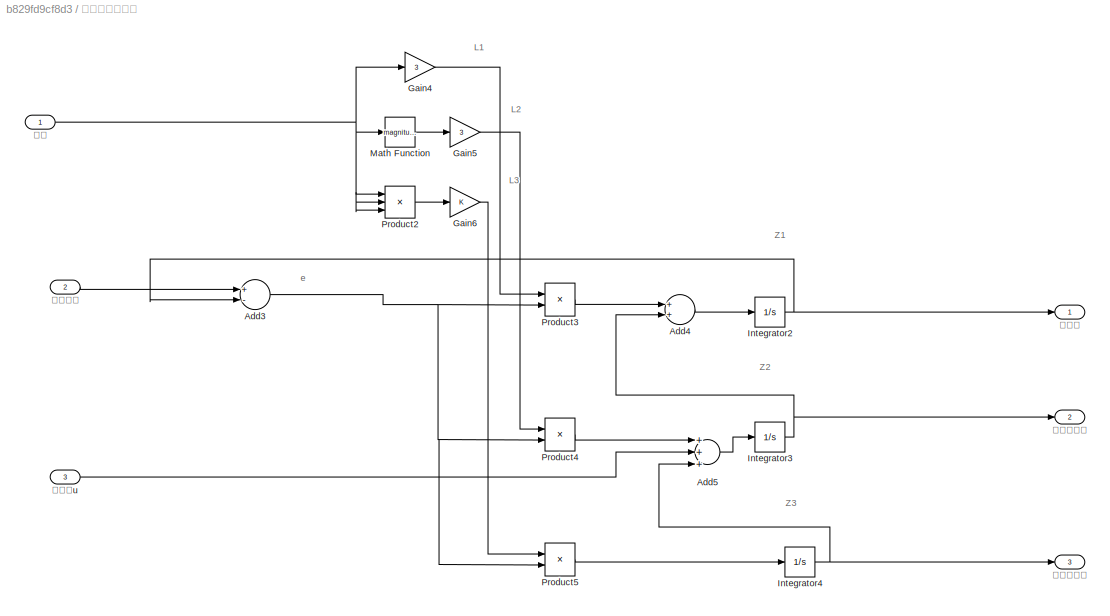
BLOCK [SubSystem] 线性扩张观测器
  Ports = [3, 3]
  RequestExecContextInheritance = off
  Variant = off
BLOCK [Sum] 线性扩张观测器/Add3
  InputSameDT = off
  Inputs = +-
  OutDataTypeStr = Inherit: Inherit via internal rule
  Ports = [2, 1]
  SaturateOnIntegerOverflow = off
BLOCK [Sum] 线性扩张观测器/Add4
  InputSameDT = off
  OutDataTypeStr = Inherit: Inherit via internal rule
  Ports = [2, 1]
  SaturateOnIntegerOverflow = off
BLOCK [Sum] 线性扩张观测器/Add5
  InputSameDT = off
  Inputs = +++
  OutDataTypeStr = Inherit: Inherit via internal rule
  Ports = [3, 1]
  SaturateOnIntegerOverflow = off
BLOCK [Gain] 线性扩张观测器/Gain4
  Gain = 3
  OutDataTypeStr = Inherit: Inherit via internal rule
  ParamDataTypeStr = Inherit: Inherit via internal rule
  SaturateOnIntegerOverflow = off
BLOCK [Gain] 线性扩张观测器/Gain5
  Gain = 3
  OutDataTypeStr = Inherit: Inherit via internal rule
  ParamDataTypeStr = Inherit: Inherit via internal rule
  SaturateOnIntegerOverflow = off
BLOCK [Gain] 线性扩张观测器/Gain6
  OutDataTypeStr = Inherit: Inherit via internal rule
  ParamDataTypeStr = Inherit: Inherit via internal rule
  SaturateOnIntegerOverflow = off
BLOCK [Integrator] 线性扩张观测器/Integrator2
  Ports = [1, 1]
BLOCK [Integrator] 线性扩张观测器/Integrator3
  Ports = [1, 1]
BLOCK [Integrator] 线性扩张观测器/Integrator4
  Ports = [1, 1]
BLOCK [Math] 线性扩张观测器/Math Function
  Operator = magnitude^2
  Ports = [1, 1]
BLOCK [Product] 线性扩张观测器/Product2
  InputSameDT = off
  Inputs = 3
  OutDataTypeStr = Inherit: Inherit via internal rule
  Ports = [3, 1]
  RndMeth = Floor
  SaturateOnIntegerOverflow = off
BLOCK [Product] 线性扩张观测器/Product3
  InputSameDT = off
  OutDataTypeStr = Inherit: Inherit via internal rule
  Ports = [2, 1]
  RndMeth = Floor
  SaturateOnIntegerOverflow = off
BLOCK [Product] 线性扩张观测器/Product4
  InputSameDT = off
  OutDataTypeStr = Inherit: Inherit via internal rule
  Ports = [2, 1]
  RndMeth = Floor
  SaturateOnIntegerOverflow = off
BLOCK [Product] 线性扩张观测器/Product5
  InputSameDT = off
  OutDataTypeStr = Inherit: Inherit via internal rule
  Ports = [2, 1]
  RndMeth = Floor
  SaturateOnIntegerOverflow = off
BLOCK [Inport] 线性扩张观测器/信号输入
  IconDisplay = Port number
  Port = 2
BLOCK [Outport] 线性扩张观测器/实际值
  IconDisplay = Port number
BLOCK [Outport] 线性扩张观测器/实际值微分
  IconDisplay = Port number
  Port = 2
BLOCK [Inport] 线性扩张观测器/带宽
  IconDisplay = Port number
BLOCK [Outport] 线性扩张观测器/总扰动估计
  IconDisplay = Port number
  Port = 3
BLOCK [Inport] 线性扩张观测器/控制量u
  IconDisplay = Port number
  Port = 3
BLOCK [SubSystem] 线性扩张观测器1
  Ports = [3, 3]
  RequestExecContextInheritance = off
  Variant = off
BLOCK [Sum] 线性扩张观测器1/Add3
  InputSameDT = off
  Inputs = +-
  OutDataTypeStr = Inherit: Inherit via internal rule
  Ports = [2, 1]
  SaturateOnIntegerOverflow = off
BLOCK [Sum] 线性扩张观测器1/Add4
  InputSameDT = off
  OutDataTypeStr = Inherit: Inherit via internal rule
  Ports = [2, 1]
  SaturateOnIntegerOverflow = off
BLOCK [Sum] 线性扩张观测器1/Add5
  InputSameDT = off
  Inputs = +++
  OutDataTypeStr = Inherit: Inherit via internal rule
  Ports = [3, 1]
  SaturateOnIntegerOverflow = off
BLOCK [Gain] 线性扩张观测器1/Gain4
  Gain = 3
  OutDataTypeStr = Inherit: Inherit via internal rule
  ParamDataTypeStr = Inherit: Inherit via internal rule
  SaturateOnIntegerOverflow = off
BLOCK [Gain] 线性扩张观测器1/Gain5
  Gain = 3
  OutDataTypeStr = Inherit: Inherit via internal rule
  ParamDataTypeStr = Inherit: Inherit via internal rule
  SaturateOnIntegerOverflow = off
BLOCK [Gain] 线性扩张观测器1/Gain6
  OutDataTypeStr = Inherit: Inherit via internal rule
  ParamDataTypeStr = Inherit: Inherit via internal rule
  SaturateOnIntegerOverflow = off
BLOCK [Integrator] 线性扩张观测器1/Integrator2
  Ports = [1, 1]
BLOCK [Integrator] 线性扩张观测器1/Integrator3
  Ports = [1, 1]
BLOCK [Integrator] 线性扩张观测器1/Integrator4
  Ports = [1, 1]
BLOCK [Math] 线性扩张观测器1/Math Function
  Operator = magnitude^2
  Ports = [1, 1]
BLOCK [Product] 线性扩张观测器1/Product2
  InputSameDT = off
  Inputs = 3
  OutDataTypeStr = Inherit: Inherit via internal rule
  Ports = [3, 1]
  RndMeth = Floor
  SaturateOnIntegerOverflow = off
BLOCK [Product] 线性扩张观测器1/Product3
  InputSameDT = off
  OutDataTypeStr = Inherit: Inherit via internal rule
  Ports = [2, 1]
  RndMeth = Floor
  SaturateOnIntegerOverflow = off
BLOCK [Product] 线性扩张观测器1/Product4
  InputSameDT = off
  OutDataTypeStr = Inherit: Inherit via internal rule
  Ports = [2, 1]
  RndMeth = Floor
  SaturateOnIntegerOverflow = off
BLOCK [Product] 线性扩张观测器1/Product5
  InputSameDT = off
  OutDataTypeStr = Inherit: Inherit via internal rule
  Ports = [2, 1]
  RndMeth = Floor
  SaturateOnIntegerOverflow = off
BLOCK [Inport] 线性扩张观测器1/信号输入
  IconDisplay = Port number
  Port = 2
BLOCK [Outport] 线性扩张观测器1/实际值
  IconDisplay = Port number
BLOCK [Outport] 线性扩张观测器1/实际值微分
  IconDisplay = Port number
  Port = 2
BLOCK [Inport] 线性扩张观测器1/带宽
  IconDisplay = Port number
BLOCK [Outport] 线性扩张观测器1/总扰动估计
  IconDisplay = Port number
  Port = 3
BLOCK [Inport] 线性扩张观测器1/控制量u
  IconDisplay = Port number
  Port = 3
BLOCK [RandomNumber] 输入噪声
  SampleTime = 0.01
  Variance = 0.00005
BLOCK [RandomNumber] 输入噪声1
  SampleTime = 0.01
  Variance = 0.00005
BLOCK [RandomNumber] 输出噪声
  SampleTime = 0.01
  Variance = 0.000001
BLOCK [RandomNumber] 输出噪声1
  SampleTime = 0.01
  Variance = 0.000001
BLOCK [SubSystem] 非线性反馈
  ErrorFcn = Stateflow.Translate.translate
  PermitHierarchicalResolution = ExplicitOnly
  Ports = [4, 1]
  RequestExecContextInheritance = off
  SFBlockType = MATLAB Function
  TreatAsAtomicUnit = on
  Variant = off
BLOCK [Demux] 非线性反馈/ Demux 
  Outputs = 1
  Ports = [1, 1]
BLOCK [S-Function] 非线性反馈/ SFunction 
  EnableBusSupport = on
  FunctionName = sf_sfun
  PortCounts = [4 2]
  Ports = [4, 2]
  SFunctionDeploymentMode = off
  Tag = Stateflow S-Function ADRC_control 4
BLOCK [Terminator] 非线性反馈/ Terminator 
BLOCK [Inport] 非线性反馈/h
  IconDisplay = Port number
  Port = 4
BLOCK [Inport] 非线性反馈/r
  IconDisplay = Port number
  Port = 3
BLOCK [Outport] 非线性反馈/u
  IconDisplay = Port number
BLOCK [Inport] 非线性反馈/x1
  IconDisplay = Port number
BLOCK [Inport] 非线性反馈/x2
  IconDisplay = Port number
  Port = 2
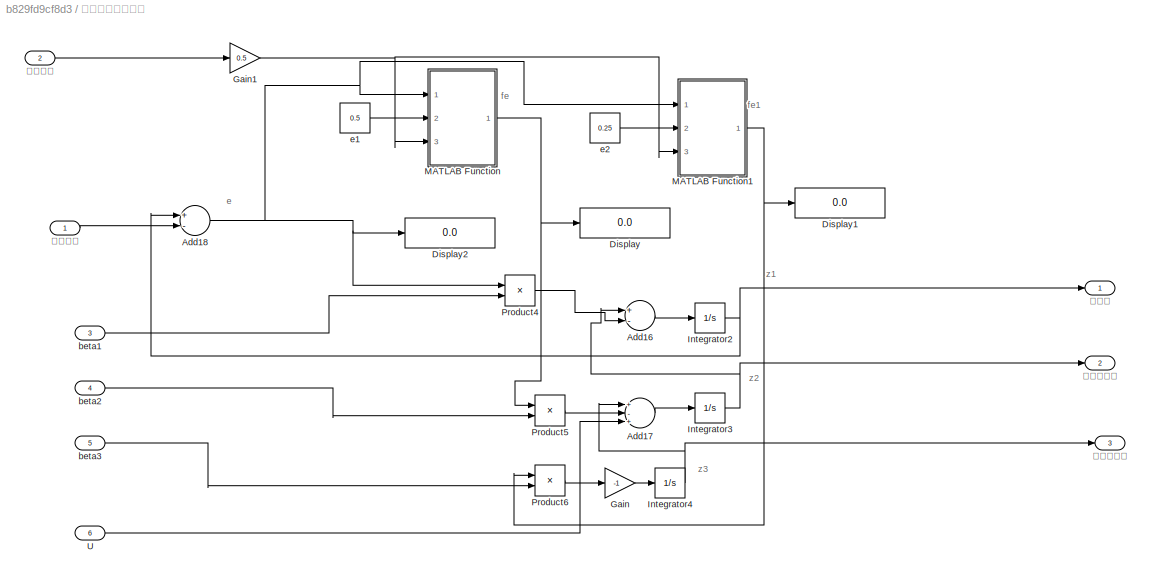
BLOCK [SubSystem] 非线性扩张观测器
  Ports = [6, 3]
  RequestExecContextInheritance = off
  Variant = off
BLOCK [Sum] 非线性扩张观测器/Add16
  InputSameDT = off
  Inputs = +-
  OutDataTypeStr = Inherit: Inherit via internal rule
  Ports = [2, 1]
  SaturateOnIntegerOverflow = off
BLOCK [Sum] 非线性扩张观测器/Add17
  InputSameDT = off
  Inputs = +-+
  OutDataTypeStr = Inherit: Inherit via internal rule
  Ports = [3, 1]
  SaturateOnIntegerOverflow = off
BLOCK [Sum] 非线性扩张观测器/Add18
  InputSameDT = off
  Inputs = +-
  OutDataTypeStr = Inherit: Inherit via internal rule
  Ports = [2, 1]
  SaturateOnIntegerOverflow = off
BLOCK [Display] 非线性扩张观测器/Display
  Decimation = 1
  Ports = [1]
BLOCK [Display] 非线性扩张观测器/Display1
  Decimation = 1
  Ports = [1]
BLOCK [Display] 非线性扩张观测器/Display2
  Decimation = 1
  Ports = [1]
BLOCK [Gain] 非线性扩张观测器/Gain
  Gain = -1
  OutDataTypeStr = Inherit: Inherit via internal rule
  ParamDataTypeStr = Inherit: Inherit via internal rule
  SaturateOnIntegerOverflow = off
BLOCK [Gain] 非线性扩张观测器/Gain1
  Gain = 0.5
  OutDataTypeStr = Inherit: Inherit via internal rule
  ParamDataTypeStr = Inherit: Inherit via internal rule
  SaturateOnIntegerOverflow = off
BLOCK [Integrator] 非线性扩张观测器/Integrator2
  Ports = [1, 1]
BLOCK [Integrator] 非线性扩张观测器/Integrator3
  Ports = [1, 1]
BLOCK [Integrator] 非线性扩张观测器/Integrator4
  Ports = [1, 1]
BLOCK [SubSystem] 非线性扩张观测器/MATLAB Function
  ErrorFcn = Stateflow.Translate.translate
  PermitHierarchicalResolution = ExplicitOnly
  Ports = [3, 1]
  RequestExecContextInheritance = off
  SFBlockType = MATLAB Function
  TreatAsAtomicUnit = on
  Variant = off
BLOCK [Demux] 非线性扩张观测器/MATLAB Function/ Demux 
  Outputs = 1
  Ports = [1, 1]
BLOCK [S-Function] 非线性扩张观测器/MATLAB Function/ SFunction 
  EnableBusSupport = on
  FunctionName = sf_sfun
  PortCounts = [3 2]
  Ports = [3, 2]
  SFunctionDeploymentMode = off
  Tag = Stateflow S-Function ADRC_control 2
BLOCK [Terminator] 非线性扩张观测器/MATLAB Function/ Terminator 
BLOCK [Inport] 非线性扩张观测器/MATLAB Function/alpha
  IconDisplay = Port number
  Port = 2
BLOCK [Inport] 非线性扩张观测器/MATLAB Function/delta
  IconDisplay = Port number
  Port = 3
BLOCK [Inport] 非线性扩张观测器/MATLAB Function/e
  IconDisplay = Port number
BLOCK [Outport] 非线性扩张观测器/MATLAB Function/y
  IconDisplay = Port number
BLOCK [SubSystem] 非线性扩张观测器/MATLAB Function1
  ErrorFcn = Stateflow.Translate.translate
  PermitHierarchicalResolution = ExplicitOnly
  Ports = [3, 1]
  RequestExecContextInheritance = off
  SFBlockType = MATLAB Function
  TreatAsAtomicUnit = on
  Variant = off
BLOCK [Demux] 非线性扩张观测器/MATLAB Function1/ Demux 
  Outputs = 1
  Ports = [1, 1]
BLOCK [S-Function] 非线性扩张观测器/MATLAB Function1/ SFunction 
  EnableBusSupport = on
  FunctionName = sf_sfun
  PortCounts = [3 2]
  Ports = [3, 2]
  SFunctionDeploymentMode = off
  Tag = Stateflow S-Function ADRC_control 3
BLOCK [Terminator] 非线性扩张观测器/MATLAB Function1/ Terminator 
BLOCK [Inport] 非线性扩张观测器/MATLAB Function1/alpha
  IconDisplay = Port number
  Port = 2
BLOCK [Inport] 非线性扩张观测器/MATLAB Function1/delta
  IconDisplay = Port number
  Port = 3
BLOCK [Inport] 非线性扩张观测器/MATLAB Function1/e
  IconDisplay = Port number
BLOCK [Outport] 非线性扩张观测器/MATLAB Function1/y
  IconDisplay = Port number
BLOCK [Product] 非线性扩张观测器/Product4
  InputSameDT = off
  OutDataTypeStr = Inherit: Inherit via internal rule
  Ports = [2, 1]
  RndMeth = Floor
  SaturateOnIntegerOverflow = off
BLOCK [Product] 非线性扩张观测器/Product5
  InputSameDT = off
  OutDataTypeStr = Inherit: Inherit via internal rule
  Ports = [2, 1]
  RndMeth = Floor
  SaturateOnIntegerOverflow = off
BLOCK [Product] 非线性扩张观测器/Product6
  InputSameDT = off
  OutDataTypeStr = Inherit: Inherit via internal rule
  Ports = [2, 1]
  RndMeth = Floor
  SaturateOnIntegerOverflow = off
BLOCK [Inport] 非线性扩张观测器/U
  IconDisplay = Port number
  Port = 6
BLOCK [Inport] 非线性扩张观测器/beta1
  IconDisplay = Port number
  Port = 3
BLOCK [Inport] 非线性扩张观测器/beta2
  IconDisplay = Port number
  Port = 4
BLOCK [Inport] 非线性扩张观测器/beta3
  IconDisplay = Port number
  Port = 5
BLOCK [Constant] 非线性扩张观测器/e1
  Value = 0.5
BLOCK [Constant] 非线性扩张观测器/e2
  Value = 0.25
BLOCK [Inport] 非线性扩张观测器/信号输入
  IconDisplay = Port number
BLOCK [Outport] 非线性扩张观测器/实际值
  IconDisplay = Port number
BLOCK [Outport] 非线性扩张观测器/实际值微分
  IconDisplay = Port number
  Port = 2
BLOCK [Outport] 非线性扩张观测器/总扰动估计
  IconDisplay = Port number
  Port = 3
BLOCK [Inport] 非线性扩张观测器/时间步长
  IconDisplay = Port number
  Port = 2
ANNOTATION (root): 示例函数
ANNOTATION (root): ADRC控制方法
ANNOTATION (root): PID控制方法
ANNOTATION (root): 非线性ADRC控制方法
ANNOTATION (root): dU
ANNOTATION (root): dW
ANNOTATION (root): delta e
ANNOTATION (root): delte T
ANNOTATION (root): q
ANNOTATION (root): theta
ANNOTATION (root): y
ANNOTATION (root): 使用 何磊飞控大作业的 飞机数据
ANNOTATION (root): 将计算出的数值 发送到飞控，飞控再原封不动发回来 需要添加零阶保持
ANNOTATION (root): 跟踪0.1时，ADRC和PID与0.1差的绝对值之和
ANNOTATION (root): 验证线性ADRC和PID跟踪效果哪个好
ANNOTATION 线性扩张观测器: L1
ANNOTATION 线性扩张观测器: L2
ANNOTATION 线性扩张观测器: L3
ANNOTATION 线性扩张观测器: Z1
ANNOTATION 线性扩张观测器: Z2
ANNOTATION 线性扩张观测器: Z3
ANNOTATION 线性扩张观测器: e
ANNOTATION 线性扩张观测器1: L1
ANNOTATION 线性扩张观测器1: L2
ANNOTATION 线性扩张观测器1: L3
ANNOTATION 线性扩张观测器1: Z1
ANNOTATION 线性扩张观测器1: Z2
ANNOTATION 线性扩张观测器1: Z3
ANNOTATION 线性扩张观测器1: e
ANNOTATION 非线性扩张观测器: e
ANNOTATION 非线性扩张观测器: fe
ANNOTATION 非线性扩张观测器: fe1
ANNOTATION 非线性扩张观测器: z1
ANNOTATION 非线性扩张观测器: z2
ANNOTATION 非线性扩张观测器: z3
NET ADRC:1 -> Add12:1, Mux2:1, Scope13:1
NET ADRC_PI_OUT:1 -> Add11:2, 控制量:1
LINE Abs1:1 -> Add13:1
LINE Abs:1 -> Add14:1
NET Add10:1 -> Goto4:1, Scope11:1
NET Add11:1 -> Add1:1, Scope12:1
LINE Add12:1 -> Abs:1
NET Add13:1 -> Memory1:1, Mux3:2
NET Add14:1 -> Memory2:1, Mux3:1, Scope6:1
LINE Add15:1 -> Abs1:1
LINE Add16:1 -> Demux4:1
LINE Add17:1 -> Saturation2:1
NET Add18:1 -> Goto3:1, Scope22:1
NET Add19:1 -> Add17:1, Scope23:1
LINE Add1:1 -> Saturation:1
LINE Add20:1 -> 非线性反馈:1
LINE Add21:1 -> Gain7:1
LINE Add22:1 -> Gain6:1
LINE Add2:1 -> Y4:1
LINE Add3:1 -> PID Controller:1
LINE Add4:1 -> Demux2:1
LINE Add5:1 -> Saturation1:1
LINE Add6:1 -> Integrator:1
LINE Add7:1 -> PID Controller1:1
NET Add8:1 -> Add5:1, Scope7:1
NET Add9:1 -> Gain10:1, Scope9:1
LINE Add:1 -> Demux:1
LINE C1:1 -> Product2:1
LINE C2:1 -> Product4:1
LINE C:1 -> Product:1
NET Clock:1 -> Divide:1, Gain2:1
LINE Constant3:1 -> Mux5:1
LINE D1:1 -> Add3:1
LINE D2:1 -> Mux:2
LINE D3:1 -> Product3:1
LINE D4:1 -> Add7:1
LINE D5:1 -> Mux1:2
LINE D6:1 -> Product5:1
LINE D7:1 -> Mux4:2
LINE D:1 -> Product1:1
LINE Data Type Conversion1:1 -> Serial Send:1
NET Data Type Conversion:1 -> Display:1, Scope31:1
LINE Demux1:1 -> Y1:1
LINE Demux1:2 -> Y1:2
LINE Demux1:3 -> Y1:3
NET Demux1:4 -> Add10:1, Y1:4
LINE Demux2:1 -> Y5:1
LINE Demux2:2 -> Y5:2
LINE Demux3:1 -> Y2:1
LINE Demux3:2 -> Y2:2
LINE Demux3:3 -> Y2:3
NET Demux3:4 -> Add9:1, Scope28:3, Y2:4
LINE Demux4:1 -> Y7:1
LINE Demux4:2 -> Y7:2
LINE Demux5:1 -> Y6:1
LINE Demux5:2 -> Y6:2
LINE Demux5:3 -> Y6:3
NET Demux5:4 -> Add18:1, Y6:4
LINE Demux:1 -> Y3:1
LINE Demux:2 -> Y3:2
LINE Divide:1 -> Trigonometric Function:1
LINE From10:1 -> Add19:1
LINE From11:1 -> Add20:1
LINE From12:1 -> Add20:2
LINE From13:1 -> Add21:2
LINE From14:1 -> Add21:1
LINE From15:1 -> 非线性扩张观测器:6
LINE From1:1 -> 线性扩张观测器:3
NET From2:1 -> Scope29:1, 线性扩张观测器:2
LINE From3:1 -> Add3:2
LINE From6:1 -> Gain11:1
NET From7:1 -> Derivative:1, Scope26:3, 非线性扩张观测器:1
LINE Gain10:1 -> Rounding Function:1
LINE Gain11:1 -> Add7:2
LINE Gain1:1 -> Add6:1
LINE Gain2:1 -> Trigonometric Function1:1
LINE Gain3:1 -> Add6:2
LINE Gain4:1 -> Add5:2
LINE Gain5:1 -> Add17:2
LINE Gain6:1 -> Goto9:1
LINE Gain7:1 -> 非线性反馈:2
LINE Gain8:1 -> Add22:1
LINE Gain9:1 -> Add22:2
LINE Gain:1 -> Add1:2
LINE I:1 -> PD控制器:2
LINE Integrator1:1 -> Scope18:1
NET Integrator:1 -> Integrator1:1, Scope19:1
LINE Memory1:1 -> Add13:2
LINE Memory2:1 -> Add14:2
NET Mux1:1 -> Product3:2, State-Space1:1
LINE Mux2:1 -> Scope:1
LINE Mux3:1 -> Scope14:1
NET Mux4:1 -> Product5:2, State-Space2:1
LINE Mux5:1 -> Data Type Conversion1:1
NET Mux:1 -> Product1:2, State-Space:1
LINE P1:1 -> Add15:2
LINE P2:1 -> Add12:2
LINE P3:1 -> PD控制器1:1
LINE P4:1 -> PD控制器:8
LINE P:1 -> PD控制器:1
LINE PD:1 -> PD控制器1:2
NET PD控制器/Add3:1 -> PD控制器/Integrator:1, PD控制器/Product2:2
LINE PD控制器/Add4:1 -> PD控制器/Product3:2
LINE PD控制器/Add5:1 -> PD控制器/Add7:1
LINE PD控制器/Add7:1 -> PD控制器/控制量:1
LINE PD控制器/D:1 -> PD控制器/Product1:1
LINE PD控制器/I:1 -> PD控制器/Product3:1
LINE PD控制器/Integrator:1 -> PD控制器/Product1:2
LINE PD控制器/P:1 -> PD控制器/Product2:1
LINE PD控制器/Product1:1 -> PD控制器/Add5:3
LINE PD控制器/Product2:1 -> PD控制器/Add5:1
LINE PD控制器/Product3:1 -> PD控制器/Add5:2
LINE PD控制器/实际值:1 -> PD控制器/Add3:2
LINE PD控制器/实际微分值:1 -> PD控制器/Add4:2
LINE PD控制器/总扰动估计:1 -> PD控制器/Add7:2
LINE PD控制器/目标值:1 -> PD控制器/Add3:1
LINE PD控制器/目标值微分:1 -> PD控制器/Add4:1
NET PD控制器1/Add3:1 -> PD控制器1/Integrator:1, PD控制器1/Product2:2
LINE PD控制器1/Add4:1 -> PD控制器1/Product3:2
LINE PD控制器1/Add5:1 -> PD控制器1/Add7:1
NET PD控制器1/Add7:1 -> PD控制器1/Scope1:1, PD控制器1/控制量:1
LINE PD控制器1/I:1 -> PD控制器1/Product3:1
LINE PD控制器1/Integrator:1 -> PD控制器1/Product1:2
LINE PD控制器1/P:1 -> PD控制器1/Product2:1
LINE PD控制器1/Pi:1 -> PD控制器1/Product1:1
LINE PD控制器1/Product1:1 -> PD控制器1/Add5:3
LINE PD控制器1/Product2:1 -> PD控制器1/Add5:1
NET PD控制器1/Product3:1 -> PD控制器1/Add5:2, PD控制器1/Scope:1
LINE PD控制器1/实际值:1 -> PD控制器1/Add3:2
LINE PD控制器1/实际微分值:1 -> PD控制器1/Add4:2
LINE PD控制器1/总扰动估计:1 -> PD控制器1/Add7:2
LINE PD控制器1/目标值:1 -> PD控制器1/Add3:1
LINE PD控制器1/目标值微分:1 -> PD控制器1/Add4:1
NET PD控制器1:1 -> ADRC_PI_Out1:1, Scope27:1
LINE PD控制器:1 -> ADRC_PI_Out:1
LINE PI:1 -> PD控制器1:8
LINE PID Controller1:1 -> Add8:2
NET PID:1 -> Add15:1, Mux2:2
LINE Product1:1 -> Add:1
LINE Product2:1 -> Add4:2
LINE Product3:1 -> Add4:1
LINE Product4:1 -> Add16:2
LINE Product5:1 -> Add16:1
LINE Product:1 -> Add:2
LINE Random Number:1 -> Scope8:1
LINE Rounding Function:1 -> Zero-Order Hold:1
LINE Saturation1:1 -> Mux1:1
LINE Saturation2:1 -> Mux4:1
LINE Saturation:1 -> Mux:1
LINE Serial Receive:1 -> Data Type Conversion:1
LINE Sign:1 -> Gain3:1
LINE Sine Wave1:1 -> 线性扩张观测器1:2
NET State-Space1:1 -> Demux3:1, Gain4:1, Product2:2
NET State-Space2:1 -> Demux5:1, Gain5:1, Product4:2
NET State-Space:1 -> Demux1:1, Gain:1, Product:2
LINE Step1:1 -> Add2:2
LINE Step:1 -> Add2:1
LINE Trigonometric Function1:1 -> Sign:1
LINE Trigonometric Function:1 -> Gain1:1
LINE V0:1 -> 最速跟踪微分器:1
LINE W1:1 -> 线性扩张观测器:1
NET Zero-Order Hold:1 -> Goto2:1, Mux5:2, Scope30:1
LINE beta1:1 -> 非线性扩张观测器:3
LINE beta2:1 -> 非线性扩张观测器:4
LINE beta3:1 -> 非线性扩张观测器:5
LINE beta4:1 -> 线性扩张观测器1:1
LINE beta5:1 -> 非线性反馈:3
LINE beta6:1 -> 非线性反馈:4
LINE h1:1 -> Divide:2
LINE h2:1 -> 最速跟踪微分器:3
LINE h3:1 -> 非线性扩张观测器:2
LINE r1:1 -> 最速跟踪微分器:2
LINE 最速跟踪微分器/Add7:1 -> 最速跟踪微分器/MATLAB Function1:1
NET 最速跟踪微分器/Integrator2:1 -> 最速跟踪微分器/Integrator3:1, 最速跟踪微分器/MATLAB Function1:2, 最速跟踪微分器/目标值微分:1
NET 最速跟踪微分器/Integrator3:1 -> 最速跟踪微分器/Add7:1, 最速跟踪微分器/目标值输出:1
LINE 最速跟踪微分器/MATLAB Function1:1 -> 最速跟踪微分器/Integrator2:1
LINE 最速跟踪微分器/时间步长:1 -> 最速跟踪微分器/MATLAB Function1:4
LINE 最速跟踪微分器/目标值:1 -> 最速跟踪微分器/Add7:2
LINE 最速跟踪微分器/速度因子:1 -> 最速跟踪微分器/MATLAB Function1:3
NET 最速跟踪微分器:1 -> Goto5:1, PD控制器1:3, PD控制器:3, Scope4:1
NET 最速跟踪微分器:2 -> Goto8:1, PD控制器1:4, PD控制器:4, Scope3:1
NET 线性扩张观测器/Add3:1 -> 线性扩张观测器/Product3:2, 线性扩张观测器/Product4:2, 线性扩张观测器/Product5:2
LINE 线性扩张观测器/Add4:1 -> 线性扩张观测器/Integrator2:1
LINE 线性扩张观测器/Add5:1 -> 线性扩张观测器/Integrator3:1
LINE 线性扩张观测器/Gain4:1 -> 线性扩张观测器/Product3:1
LINE 线性扩张观测器/Gain5:1 -> 线性扩张观测器/Product4:1
LINE 线性扩张观测器/Gain6:1 -> 线性扩张观测器/Product5:1
NET 线性扩张观测器/Integrator2:1 -> 线性扩张观测器/Add3:2, 线性扩张观测器/实际值:1
NET 线性扩张观测器/Integrator3:1 -> 线性扩张观测器/Add4:2, 线性扩张观测器/实际值微分:1
NET 线性扩张观测器/Integrator4:1 -> 线性扩张观测器/Add5:3, 线性扩张观测器/总扰动估计:1
LINE 线性扩张观测器/Math Function:1 -> 线性扩张观测器/Gain5:1
LINE 线性扩张观测器/Product2:1 -> 线性扩张观测器/Gain6:1
LINE 线性扩张观测器/Product3:1 -> 线性扩张观测器/Add4:1
LINE 线性扩张观测器/Product4:1 -> 线性扩张观测器/Add5:1
LINE 线性扩张观测器/Product5:1 -> 线性扩张观测器/Integrator4:1
LINE 线性扩张观测器/信号输入:1 -> 线性扩张观测器/Add3:1
NET 线性扩张观测器/带宽:1 -> 线性扩张观测器/Gain4:1, 线性扩张观测器/Math Function:1, 线性扩张观测器/Product2:1, 线性扩张观测器/Product2:2, 线性扩张观测器/Product2:3
LINE 线性扩张观测器/控制量u:1 -> 线性扩张观测器/Add5:2
NET 线性扩张观测器1/Add3:1 -> 线性扩张观测器1/Product3:2, 线性扩张观测器1/Product4:2, 线性扩张观测器1/Product5:2
LINE 线性扩张观测器1/Add4:1 -> 线性扩张观测器1/Integrator2:1
LINE 线性扩张观测器1/Add5:1 -> 线性扩张观测器1/Integrator3:1
LINE 线性扩张观测器1/Gain4:1 -> 线性扩张观测器1/Product3:1
LINE 线性扩张观测器1/Gain5:1 -> 线性扩张观测器1/Product4:1
LINE 线性扩张观测器1/Gain6:1 -> 线性扩张观测器1/Product5:1
NET 线性扩张观测器1/Integrator2:1 -> 线性扩张观测器1/Add3:2, 线性扩张观测器1/实际值:1
NET 线性扩张观测器1/Integrator3:1 -> 线性扩张观测器1/Add4:2, 线性扩张观测器1/实际值微分:1
NET 线性扩张观测器1/Integrator4:1 -> 线性扩张观测器1/Add5:3, 线性扩张观测器1/总扰动估计:1
LINE 线性扩张观测器1/Math Function:1 -> 线性扩张观测器1/Gain5:1
LINE 线性扩张观测器1/Product2:1 -> 线性扩张观测器1/Gain6:1
LINE 线性扩张观测器1/Product3:1 -> 线性扩张观测器1/Add4:1
LINE 线性扩张观测器1/Product4:1 -> 线性扩张观测器1/Add5:1
LINE 线性扩张观测器1/Product5:1 -> 线性扩张观测器1/Integrator4:1
LINE 线性扩张观测器1/信号输入:1 -> 线性扩张观测器1/Add3:1
NET 线性扩张观测器1/带宽:1 -> 线性扩张观测器1/Gain4:1, 线性扩张观测器1/Math Function:1, 线性扩张观测器1/Product2:1, 线性扩张观测器1/Product2:2, 线性扩张观测器1/Product2:3
LINE 线性扩张观测器1/控制量u:1 -> 线性扩张观测器1/Add5:2
LINE 线性扩张观测器1:1 -> Scope24:1
LINE 线性扩张观测器1:2 -> Scope25:1
NET 线性扩张观测器:1 -> PD控制器:5, Scope1:1, Scope26:1, Scope28:1
NET 线性扩张观测器:2 -> PD控制器:6, Scope20:1, Scope2:1
NET 线性扩张观测器:3 -> PD控制器:7, Scope5:1
LINE 输出噪声1:1 -> Scope21:1
LINE 输出噪声:1 -> Scope10:1
LINE 非线性反馈:1 -> Gain8:1
LINE 非线性扩张观测器/Add16:1 -> 非线性扩张观测器/Integrator2:1
LINE 非线性扩张观测器/Add17:1 -> 非线性扩张观测器/Integrator3:1
NET 非线性扩张观测器/Add18:1 -> 非线性扩张观测器/Display2:1, 非线性扩张观测器/MATLAB Function1:1, 非线性扩张观测器/MATLAB Function:1, 非线性扩张观测器/Product4:1
NET 非线性扩张观测器/Gain1:1 -> 非线性扩张观测器/MATLAB Function1:3, 非线性扩张观测器/MATLAB Function:3
LINE 非线性扩张观测器/Gain:1 -> 非线性扩张观测器/Integrator4:1
NET 非线性扩张观测器/Integrator2:1 -> 非线性扩张观测器/Add18:1, 非线性扩张观测器/实际值:1
NET 非线性扩张观测器/Integrator3:1 -> 非线性扩张观测器/Add16:1, 非线性扩张观测器/实际值微分:1
NET 非线性扩张观测器/Integrator4:1 -> 非线性扩张观测器/Add17:1, 非线性扩张观测器/总扰动估计:1
NET 非线性扩张观测器/MATLAB Function1:1 -> 非线性扩张观测器/Display1:1, 非线性扩张观测器/Product6:1
NET 非线性扩张观测器/MATLAB Function:1 -> 非线性扩张观测器/Display:1, 非线性扩张观测器/Product5:1
LINE 非线性扩张观测器/Product4:1 -> 非线性扩张观测器/Add16:2
LINE 非线性扩张观测器/Product5:1 -> 非线性扩张观测器/Add17:2
LINE 非线性扩张观测器/Product6:1 -> 非线性扩张观测器/Gain:1
LINE 非线性扩张观测器/U:1 -> 非线性扩张观测器/Add17:3
LINE 非线性扩张观测器/beta1:1 -> 非线性扩张观测器/Product4:2
LINE 非线性扩张观测器/beta2:1 -> 非线性扩张观测器/Product5:2
LINE 非线性扩张观测器/beta3:1 -> 非线性扩张观测器/Product6:2
LINE 非线性扩张观测器/e1:1 -> 非线性扩张观测器/MATLAB Function:2
LINE 非线性扩张观测器/e2:1 -> 非线性扩张观测器/MATLAB Function1:2
LINE 非线性扩张观测器/信号输入:1 -> 非线性扩张观测器/Add18:2
LINE 非线性扩张观测器/时间步长:1 -> 非线性扩张观测器/Gain1:1
NET 非线性扩张观测器:1 -> Goto6:1, Lowpass Filter:1, PD控制器1:5, Scope15:1, Scope26:2, Scope28:2
NET 非线性扩张观测器:2 -> Goto7:1, PD控制器1:6, Scope16:1, Scope25:2
NET 非线性扩张观测器:3 -> Gain9:1, PD控制器1:7, Scope17:1
note: NET lines group one-source signal fan-out (src -> all destinations, sorted); 1:1 wires keep LINE
CHART 最速跟踪微分器/MATLAB Function1 states=1 transitions=1
  STATE_LABEL 'eML_blk_kernel()'
  STATE_LABEL 'SCRIPT:\nfunction u = fhan(x1,x2,r,h)\n% x1:V1-V0  V1为实际输出值，V0为需要跟踪的值\n% x2:V0的微分\n% r: 速度因子\n% h: 时间步长\n\n%输出 u： 一次积分得到V0的微分，再积分得到V0。\n\n%FHAN 最速控制综合函数\n%   此处显示详细说明\n%a = 0;\n%u = 0;\nd = r*h;\nd0 = h*d;\ny = x1+h*x2;\na0 = sqrt(d*d+8*r*abs(y));\n\nif abs(y)>d0\n    a = x2+(a0-d)/2*sign(y);\nelse\n    a = x2+y/h;\nend\n\n\nif abs(a)>d\n    u = -r*sign(a);\nelse\n    u = -r*a/d;\nend\n\nend\n\n'
CHART 非线性扩张观测器/MATLAB Function states=1 transitions=1
  STATE_LABEL 'eML_blk_kernel()'
  STATE_LABEL 'SCRIPT:\nfunction y = fal(e,alpha,delta)\n%非线性扩张状态观测器常用的函数fal\n%P202\n%e:系统实际输出y和估计值z1的差\n%alpha:0.5或0.25\n%delta：线性段的区间长度\n%#codegen\n  if abs(e)>delta\n      u = abs(e)^alpha * sign(e);\n  else\n     % u = abs(delta)^alpha * sign(delta)/delta * e;\n      u = e/(delta^(1-alpha));\n  end\n\ny = u;'
CHART 非线性扩张观测器/MATLAB Function1 states=1 transitions=1
  STATE_LABEL 'eML_blk_kernel()'
  STATE_LABEL 'SCRIPT:\nfunction y = fal(e,alpha,delta)\n%非线性扩张状态观测器常用的函数fal\n%P202\n%e:系统实际输出y和估计值z1的差\n%alpha:0.5或0.25\n%delta：线性段的区间长度\n%#codegen\n if abs(e)>delta\n      u = abs(e)^alpha * sign(e);\n  else\n     % u = abs(delta)^alpha * sign(delta)/delta * e;\n      u = e/(delta^(1-alpha));\n  end\ny = u;'
CHART 非线性反馈 states=1 transitions=1
  STATE_LABEL 'eML_blk_kernel()'
  STATE_LABEL 'SCRIPT:\nfunction u = fhan(x1,x2,r,h)\n% x1:V1-V0  V1为实际输出值，V0为需要跟踪的值\n% x2:V0的微分\n% r: 速度因子\n% h: 时间步长\n\n%输出 u： 一次积分得到V0的微分，再积分得到V0。\n\n%FHAN 最速控制综合函数\n%   此处显示详细说明\n%a = 0;\n%u = 0;\nd = r*h;\nd0 = h*d;\ny = x1+h*x2;\na0 = sqrt(d*d+8*r*abs(y));\n\nif abs(y)>d0\n    a = x2+(a0-d)/2*sign(y);\nelse\n    a = x2+y/h;\nend\n\n\nif abs(a)>d\n    u = -r*sign(a);\nelse\n    u = -r*a/d;\nend\n\nend\n\n'
